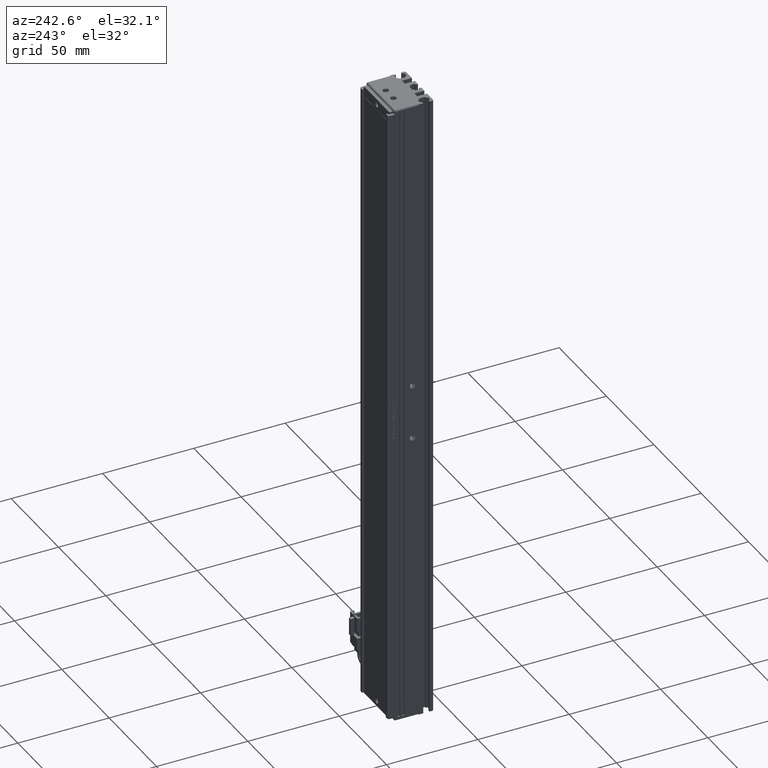
[diagram: clean part render]
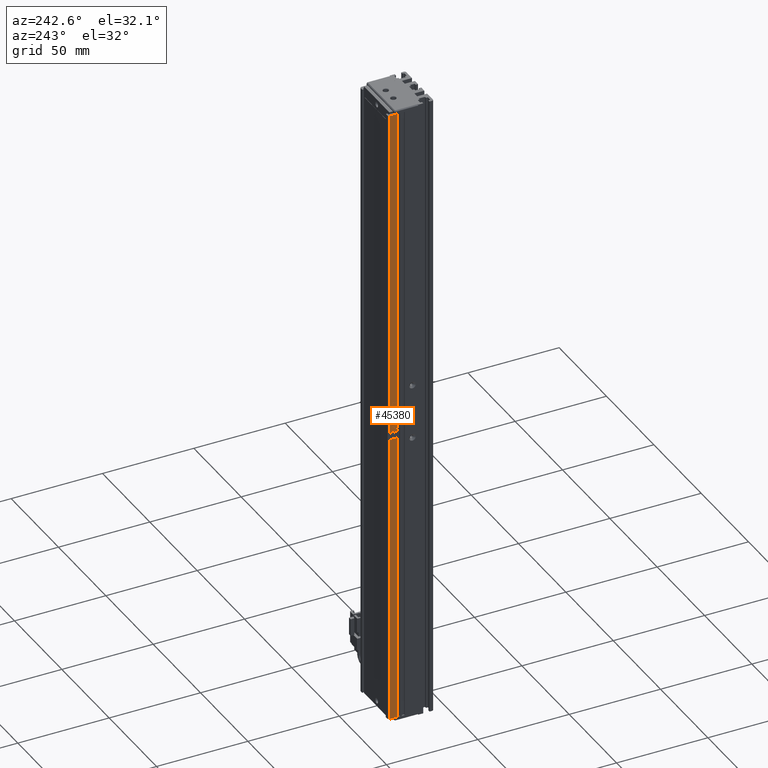
[diagram: same view with one face highlighted and labeled with its STEP entity id]
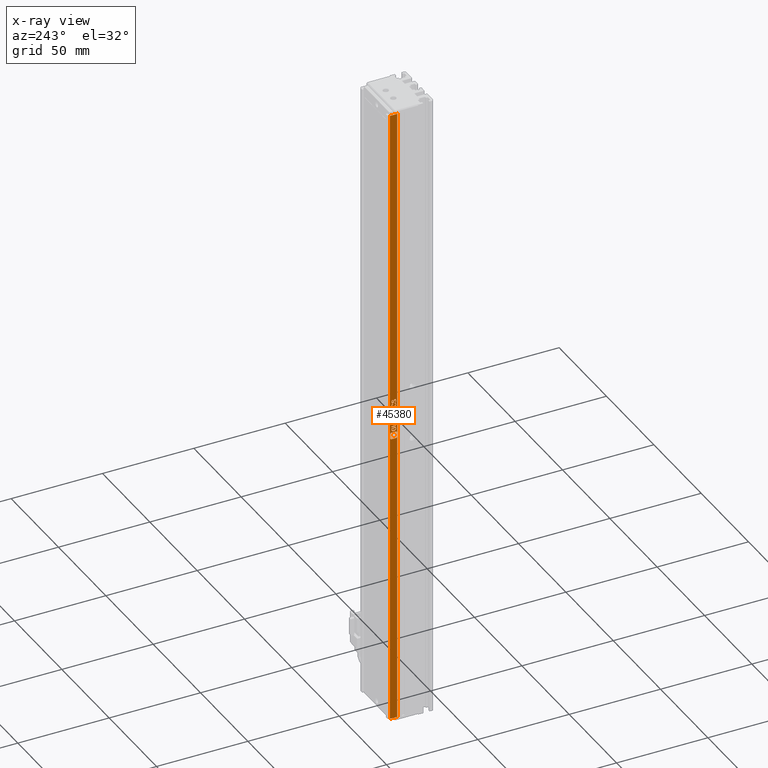
[diagram: x-ray of the same camera — body ghosted, the highlighted face saturated]
A machine part, auxiliary view. The second image highlights one B-rep face of the part: STEP entity #45380.
The next image is the same camera in x-ray: the body ghosted, the highlighted face saturated — about 0% of this face is hidden behind the body in this view.
In plain terms, the highlighted planar face has unit normal (-1, 0, 0).
Its self-contained STEP definition (entity closure, byte-faithful):
#210 = EDGE_LOOP ( 'NONE', ( #59700, #45532, #8097, #22598, #40470, #1730, #28264 ) ) ;
#323 = CARTESIAN_POINT ( 'NONE',  ( 25.92537974683541800, 33.42333488627760100, -115.3983761807793700 ) ) ;
#450 = CARTESIAN_POINT ( 'NONE',  ( 25.92537974683541800, 32.60174213343821500, -117.6690630385403600 ) ) ;
#584 = CARTESIAN_POINT ( 'NONE',  ( 25.92537974683541800, 33.05523050553124200, -113.1673053316716800 ) ) ;
#622 = CARTESIAN_POINT ( 'NONE',  ( 25.92537974683541800, 33.52034678460102400, -110.8567996529265500 ) ) ;
#624 = EDGE_CURVE ( 'NONE', #27095, #11548, #26111, .T. ) ;
#695 = LINE ( 'NONE', #23319, #40625 ) ;
#768 = VERTEX_POINT ( 'NONE', #56754 ) ;
#787 = VERTEX_POINT ( 'NONE', #36292 ) ;
#944 = CARTESIAN_POINT ( 'NONE',  ( 25.92537974683541800, 32.60174213343821500, -115.3476730980320000 ) ) ;
#1074 = EDGE_CURVE ( 'NONE', #56144, #25780, #20077, .T. ) ;
#1302 = CARTESIAN_POINT ( 'NONE',  ( 25.92537974683541800, 32.81104445901963400, -122.3985789931102900 ) ) ;
#1613 = CARTESIAN_POINT ( 'NONE',  ( 25.92537974683541800, 31.64825376134518800, -106.4092604425425600 ) ) ;
#1615 = CARTESIAN_POINT ( 'NONE',  ( 25.92537974683541800, 31.29941655204287400, -120.5544740715310300 ) ) ;
#1665 = CARTESIAN_POINT ( 'NONE',  ( 25.92537974683541800, 33.21802120320565200, -106.7455232873235100 ) ) ;
#1730 = ORIENTED_EDGE ( 'NONE', *, *, #33294, .F. ) ;
#1935 = DIRECTION ( 'NONE',  ( -0.0000000000000000000, -0.0000000000000000000, -1.000000000000000000 ) ) ;
#2080 = CARTESIAN_POINT ( 'NONE',  ( 25.92537974683541800, 31.65988166832194800, -119.8277298854846900 ) ) ;
#2244 = CARTESIAN_POINT ( 'NONE',  ( 25.92537974683541800, 32.61337004041497100, -122.9192658508716000 ) ) ;
#2306 = VERTEX_POINT ( 'NONE', #18006 ) ;
#2331 = CARTESIAN_POINT ( 'NONE',  ( 25.92537974683541800, 33.86918399390334100, -115.0222269109038500 ) ) ;
#2428 = DIRECTION ( 'NONE',  ( -0.0000000000000000000, -0.0000000000000000000, 1.000000000000000000 ) ) ;
#2501 = CARTESIAN_POINT ( 'NONE',  ( 25.92537974683541800, 31.64426511883574400, -108.1702799125264200 ) ) ;
#2588 = CARTESIAN_POINT ( 'NONE',  ( 25.92537974683541800, 33.21021292846253900, -109.2007693662851400 ) ) ;
#2635 = ORIENTED_EDGE ( 'NONE', *, *, #44163, .F. ) ;
#2742 = ORIENTED_EDGE ( 'NONE', *, *, #37081, .F. ) ;
#2754 = LINE ( 'NONE', #6781, #63861 ) ;
#2892 = ORIENTED_EDGE ( 'NONE', *, *, #66946, .F. ) ;
#2908 = DIRECTION ( 'NONE',  ( -0.0000000000000000000, -0.0000000000000000000, 1.000000000000000000 ) ) ;
#3007 = B_SPLINE_CURVE_WITH_KNOTS ( 'NONE', 3,
 ( #67438, #10461, #41660, #46864 ),
 .UNSPECIFIED., .F., .F.,
 ( 4, 4 ),
 ( 6.000000000000000000, 7.000000000000000000 ),
 .UNSPECIFIED. ) ;
#3100 = EDGE_CURVE ( 'NONE', #22012, #26881, #52203, .T. ) ;
#3122 = CARTESIAN_POINT ( 'NONE',  ( 25.92537974683541800, 31.64825376134518800, -106.0838142554143000 ) ) ;
#3170 = CARTESIAN_POINT ( 'NONE',  ( 25.92537974683541800, 33.12499794739170500, -105.4438061429212000 ) ) ;
#3240 = CARTESIAN_POINT ( 'NONE',  ( 25.92537974683541800, 33.86918399390334100, -118.7754719081997600 ) ) ;
#3313 = EDGE_CURVE ( 'NONE', #43095, #30104, #7832, .T. ) ;
#3413 = CARTESIAN_POINT ( 'NONE',  ( 25.92537974683541800, 32.04360259855453600, -121.7043523841326300 ) ) ;
#3445 = B_SPLINE_CURVE_WITH_KNOTS ( 'NONE', 3,
 ( #52673, #5784, #11022, #57916 ),
 .UNSPECIFIED., .F., .F.,
 ( 4, 4 ),
 ( 9.000000000000000000, 10.00000000000000000 ),
 .UNSPECIFIED. ) ;
#3893 = CARTESIAN_POINT ( 'NONE',  ( 25.92537974683541800, 33.89625944009043900, -106.9624648773722100 ) ) ;
#4012 = CARTESIAN_POINT ( 'NONE',  ( 25.92537974683541800, 32.41569562181031500, -106.3549743419476800 ) ) ;
#4065 = EDGE_CURVE ( 'NONE', #25441, #7171, #3445, .T. ) ;
#4086 = DIRECTION ( 'NONE',  ( 0.0000000000000000000, 1.000000000000000000, 0.0000000000000000000 ) ) ;
#4235 = CARTESIAN_POINT ( 'NONE',  ( 25.92537974683541800, 33.86918399390334100, -115.0222269109038500 ) ) ;
#4289 = B_SPLINE_CURVE_WITH_KNOTS ( 'NONE', 3,
 ( #63007, #26515, #11025, #47454 ),
 .UNSPECIFIED., .F., .F.,
 ( 4, 4 ),
 ( 1.000000000000000000, 2.000000000000000000 ),
 .UNSPECIFIED. ) ;
#4342 = EDGE_CURVE ( 'NONE', #20246, #44657, #3007, .T. ) ;
#4452 = CARTESIAN_POINT ( 'NONE',  ( 25.92537974683541800, 33.86918399390334100, -119.2961587659606100 ) ) ;
#4633 = CARTESIAN_POINT ( 'NONE',  ( 25.92537974683541800, 32.06685841250799700, -105.3787033846735300 ) ) ;
#4661 = CARTESIAN_POINT ( 'NONE',  ( 25.92537974683541800, 31.79542790953343000, -117.6329624436242500 ) ) ;
#4704 = CARTESIAN_POINT ( 'NONE',  ( 25.92537974683541800, 32.45057934274056100, -118.7754719081997600 ) ) ;
#4725 = ORIENTED_EDGE ( 'NONE', *, *, #12641, .F. ) ;
#4738 = VERTEX_POINT ( 'NONE', #63719 ) ;
#4765 = EDGE_CURVE ( 'NONE', #42051, #26120, #9333, .T. ) ;
#5010 = CARTESIAN_POINT ( 'NONE',  ( 25.92537974683541800, 32.00091060288117700, -109.1934681223695800 ) ) ;
#5187 = CARTESIAN_POINT ( 'NONE',  ( 25.92537974683541800, 32.61337004041497100, -122.9192658508716000 ) ) ;
#5242 = CARTESIAN_POINT ( 'NONE',  ( 25.92537974683541800, 32.61337004041497100, -109.7394389173939500 ) ) ;
#5247 = CARTESIAN_POINT ( 'NONE',  ( 25.92537974683541800, 34.69594479660387500, -288.0000000000000600 ) ) ;
#5317 = CARTESIAN_POINT ( 'NONE',  ( 25.92537974683541800, 31.36918399390333800, -110.5530543852141800 ) ) ;
#5334 = EDGE_CURVE ( 'NONE', #16511, #9158, #13943, .T. ) ;
#5404 = CARTESIAN_POINT ( 'NONE',  ( 25.92537974683541800, 32.22964911018240700, -107.3313129033319200 ) ) ;
#5424 = CARTESIAN_POINT ( 'NONE',  ( 25.92537974683541800, 33.17150957529867800, -121.7693875382700000 ) ) ;
#5532 = CARTESIAN_POINT ( 'NONE',  ( 25.92537974683541800, 33.90406771483355900, -116.5083680682861900 ) ) ;
#5569 = ORIENTED_EDGE ( 'NONE', *, *, #58284, .F. ) ;
#5784 = CARTESIAN_POINT ( 'NONE',  ( 25.92537974683541800, 33.62100930488225700, -107.7073945690974500 ) ) ;
#5806 = CARTESIAN_POINT ( 'NONE',  ( 25.92537974683541800, 34.16508545272805700, -127.7668061041690800 ) ) ;
#5969 = LINE ( 'NONE', #10055, #59747 ) ;
#6328 = ORIENTED_EDGE ( 'NONE', *, *, #56716, .F. ) ;
#6350 = ORIENTED_EDGE ( 'NONE', *, *, #35983, .F. ) ;
#6568 = LINE ( 'NONE', #23880, #60362 ) ;
#6620 = EDGE_CURVE ( 'NONE', #54466, #24415, #50596, .T. ) ;
#6781 = CARTESIAN_POINT ( 'NONE',  ( 25.92537974683541800, 31.36918399390333800, -110.0431841851061100 ) ) ;
#6825 = EDGE_CURVE ( 'NONE', #25105, #10485, #39551, .T. ) ;
#6988 = CARTESIAN_POINT ( 'NONE',  ( 25.92537974683541800, 33.90406771483355900, -108.6221457859714500 ) ) ;
#7113 = CARTESIAN_POINT ( 'NONE',  ( 25.92537974683541800, 31.64825376134518800, -106.4092604425425600 ) ) ;
#7122 = CARTESIAN_POINT ( 'NONE',  ( 25.92537974683541800, 31.48348707519337700, -124.0383808647334500 ) ) ;
#7136 = EDGE_CURVE ( 'NONE', #32949, #18755, #51028, .T. ) ;
#7171 = VERTEX_POINT ( 'NONE', #6988 ) ;
#7332 = CARTESIAN_POINT ( 'NONE',  ( 25.92537974683541800, 32.04360259855453600, -121.7043523841326300 ) ) ;
#7497 = LINE ( 'NONE', #60200, #61273 ) ;
#7543 = CARTESIAN_POINT ( 'NONE',  ( 25.92537974683541800, 31.87300362613698100, -120.3592334008984300 ) ) ;
#7545 = CARTESIAN_POINT ( 'NONE',  ( 25.92537974683541800, 33.21802120320565200, -106.7455232873235100 ) ) ;
#7832 = B_SPLINE_CURVE_WITH_KNOTS ( 'NONE', 3,
 ( #48682, #12229, #27493, #17451 ),
 .UNSPECIFIED., .F., .F.,
 ( 4, 4 ),
 ( 13.00000000000000000, 14.00000000000000000 ),
 .UNSPECIFIED. ) ;
#8097 = ORIENTED_EDGE ( 'NONE', *, *, #43587, .F. ) ;
#8129 = CARTESIAN_POINT ( 'NONE',  ( 25.92537974683541800, 31.48348707519337700, -124.0383808647334500 ) ) ;
#8143 = DIRECTION ( 'NONE',  ( -0.0000000000000000000, 1.000000000000000000, -0.0000000000000000000 ) ) ;
#8169 = CARTESIAN_POINT ( 'NONE',  ( 25.92537974683541800, 32.46220724971728800, -121.7043523841326300 ) ) ;
#8190 = CARTESIAN_POINT ( 'NONE',  ( 25.92537974683541800, 32.22566046767296700, -113.4349500044679600 ) ) ;
#8302 = DIRECTION ( 'NONE',  ( -0.0000000000000000000, -1.000000000000000000, -0.0000000000000000000 ) ) ;
#8324 = LINE ( 'NONE', #48613, #62106 ) ;
#8440 = CARTESIAN_POINT ( 'NONE',  ( 25.92537974683541800, 33.62881757962534800, -105.5306098205847600 ) ) ;
#8636 = CARTESIAN_POINT ( 'NONE',  ( 25.92537974683541800, 32.46220724971728800, -105.3787033846735300 ) ) ;
#8743 = ORIENTED_EDGE ( 'NONE', *, *, #34306, .F. ) ;
#8785 = LINE ( 'NONE', #28640, #10422 ) ;
#9106 = B_SPLINE_CURVE_WITH_KNOTS ( 'NONE', 3,
 ( #27608, #58766, #12117, #48560 ),
 .UNSPECIFIED., .F., .F.,
 ( 4, 4 ),
 ( 4.000000000000000000, 5.000000000000000000 ),
 .UNSPECIFIED. ) ;
#9135 = CARTESIAN_POINT ( 'NONE',  ( 25.92537974683541800, 35.69594479660387500, -288.0000000000000600 ) ) ;
#9152 = ORIENTED_EDGE ( 'NONE', *, *, #53008, .F. ) ;
#9158 = VERTEX_POINT ( 'NONE', #23717 ) ;
#9226 = DIRECTION ( 'NONE',  ( -0.0000000000000000000, -1.000000000000000000, -0.0000000000000000000 ) ) ;
#9333 = LINE ( 'NONE', #17433, #37002 ) ;
#9342 = ORIENTED_EDGE ( 'NONE', *, *, #20755, .F. ) ;
#9347 = VERTEX_POINT ( 'NONE', #20267 ) ;
#9378 = CARTESIAN_POINT ( 'NONE',  ( 25.92537974683541800, 35.69594479660387500, 58.00000000000000700 ) ) ;
#9406 = VERTEX_POINT ( 'NONE', #10465 ) ;
#9522 = CARTESIAN_POINT ( 'NONE',  ( 25.92537974683541800, 33.54360259855448600, -106.3875595231265700 ) ) ;
#9552 = LINE ( 'NONE', #20014, #21759 ) ;
#9681 = VERTEX_POINT ( 'NONE', #34605 ) ;
#10055 = CARTESIAN_POINT ( 'NONE',  ( 25.92537974683541800, 31.48348707519337700, -127.7668061041690800 ) ) ;
#10080 = ORIENTED_EDGE ( 'NONE', *, *, #11913, .F. ) ;
#10270 = CARTESIAN_POINT ( 'NONE',  ( 25.92537974683541800, 32.59011422646145900, -109.2079354019800900 ) ) ;
#10422 = VECTOR ( 'NONE', #8143, 1000.000000000000000 ) ;
#10445 = VERTEX_POINT ( 'NONE', #1302 ) ;
#10461 = CARTESIAN_POINT ( 'NONE',  ( 25.92537974683541800, 31.32267236599636100, -108.1738629303739600 ) ) ;
#10465 = CARTESIAN_POINT ( 'NONE',  ( 25.92537974683541800, 33.52034678460102400, -112.1476325355657600 ) ) ;
#10485 = VERTEX_POINT ( 'NONE', #22968 ) ;
#10751 = FACE_BOUND ( 'NONE', #39988, .T. ) ;
#11022 = CARTESIAN_POINT ( 'NONE',  ( 25.92537974683541800, 33.89625944009043900, -108.0509586577939600 ) ) ;
#11025 = CARTESIAN_POINT ( 'NONE',  ( 25.92537974683541800, 33.38845116534735500, -108.1738629303739600 ) ) ;
#11028 = CARTESIAN_POINT ( 'NONE',  ( 25.92537974683541800, 33.59775349092874600, -113.1602069000873700 ) ) ;
#11037 = CARTESIAN_POINT ( 'NONE',  ( 25.92537974683541800, 34.53215067387920800, -127.0870172054482900 ) ) ;
#11067 = ORIENTED_EDGE ( 'NONE', *, *, #42819, .F. ) ;
#11534 = VECTOR ( 'NONE', #11608, 1000.000000000000000 ) ;
#11548 = VERTEX_POINT ( 'NONE', #40637 ) ;
#11608 = DIRECTION ( 'NONE',  ( -0.0000000000000000000, -0.0000000000000000000, -1.000000000000000000 ) ) ;
#11718 = DIRECTION ( 'NONE',  ( -0.0000000000000000000, -1.000000000000000000, -0.0000000000000000000 ) ) ;
#11721 = CARTESIAN_POINT ( 'NONE',  ( 25.92537974683541800, 33.05523050553124200, -113.1673053316716800 ) ) ;
#11898 = CARTESIAN_POINT ( 'NONE',  ( 25.92537974683541800, 33.55523050553124200, -122.2792577383781600 ) ) ;
#11913 = EDGE_CURVE ( 'NONE', #60291, #44714, #59245, .T. ) ;
#11997 = DIRECTION ( 'NONE',  ( -0.0000000000000000000, -0.0000000000000000000, 1.000000000000000000 ) ) ;
#12048 = VERTEX_POINT ( 'NONE', #55569 ) ;
#12117 = CARTESIAN_POINT ( 'NONE',  ( 25.92537974683541800, 32.53197469157775100, -107.0204692040354600 ) ) ;
#12129 = CARTESIAN_POINT ( 'NONE',  ( 25.92537974683541800, 33.07848631948472500, -107.5915887281024200 ) ) ;
#12229 = CARTESIAN_POINT ( 'NONE',  ( 25.92537974683541800, 31.45456798525003000, -107.0855043581726000 ) ) ;
#12247 = VECTOR ( 'NONE', #24246, 1000.000000000000000 ) ;
#12264 = EDGE_CURVE ( 'NONE', #46219, #28063, #65899, .T. ) ;
#12273 = DIRECTION ( 'NONE',  ( -0.0000000000000000000, -0.0000000000000000000, 1.000000000000000000 ) ) ;
#12315 = CARTESIAN_POINT ( 'NONE',  ( 25.92537974683541800, 32.22964911018240700, -107.3313129033319200 ) ) ;
#12371 = VERTEX_POINT ( 'NONE', #33218 ) ;
#12373 = FACE_BOUND ( 'NONE', #62413, .T. ) ;
#12405 = VECTOR ( 'NONE', #4086, 1000.000000000000000 ) ;
#12641 = EDGE_CURVE ( 'NONE', #18409, #64549, #66344, .T. ) ;
#12716 = CARTESIAN_POINT ( 'NONE',  ( 25.92537974683541800, 33.55523050553124200, -122.2792577383781600 ) ) ;
#12803 = ORIENTED_EDGE ( 'NONE', *, *, #45396, .F. ) ;
#13090 = CARTESIAN_POINT ( 'NONE',  ( 25.92537974683541800, 33.54360259855448600, -108.5896282089028900 ) ) ;
#13162 = CARTESIAN_POINT ( 'NONE',  ( 25.92537974683541800, 31.65988166832194800, -122.2358558995462800 ) ) ;
#13240 = ORIENTED_EDGE ( 'NONE', *, *, #48242, .F. ) ;
#13304 = VERTEX_POINT ( 'NONE', #5317 ) ;
#13330 = EDGE_CURVE ( 'NONE', #22206, #16511, #38333, .T. ) ;
#13455 = CARTESIAN_POINT ( 'NONE',  ( 25.92537974683541800, 33.43895143576380500, -123.4111533576319200 ) ) ;
#13760 = ORIENTED_EDGE ( 'NONE', *, *, #24142, .F. ) ;
#13813 = CARTESIAN_POINT ( 'NONE',  ( 25.92537974683541800, 31.78778864506611500, -123.4111533576319200 ) ) ;
#13943 = B_SPLINE_CURVE_WITH_KNOTS ( 'NONE', 3,
 ( #31643, #62869, #57566, #450 ),
 .UNSPECIFIED., .F., .F.,
 ( 4, 4 ),
 ( 2.000000000000000000, 3.000000000000000000 ),
 .UNSPECIFIED. ) ;
#13946 = CARTESIAN_POINT ( 'NONE',  ( 25.92537974683541800, 30.80372534025560000, -124.7181086063044400 ) ) ;
#13955 = LINE ( 'NONE', #35467, #15607 ) ;
#13962 = CARTESIAN_POINT ( 'NONE',  ( 25.92537974683541800, 31.65988166832194800, -119.8277298854846900 ) ) ;
#14005 = EDGE_CURVE ( 'NONE', #57929, #52576, #34473, .T. ) ;
#14171 = CARTESIAN_POINT ( 'NONE',  ( 25.92537974683541800, 33.21802120320565200, -107.2770268027372700 ) ) ;
#14212 = CARTESIAN_POINT ( 'NONE',  ( 25.92537974683541800, 32.21802120320565200, -107.6458748286972000 ) ) ;
#14470 = CARTESIAN_POINT ( 'NONE',  ( 25.92537974683541800, 33.90406771483355900, -121.7368699612014200 ) ) ;
#14474 = EDGE_CURVE ( 'NONE', #45155, #42051, #62687, .T. ) ;
#14529 = CARTESIAN_POINT ( 'NONE',  ( 25.92537974683541800, 32.03197469157775100, -105.9102745041974900 ) ) ;
#14642 = CARTESIAN_POINT ( 'NONE',  ( 25.92537974683541800, 33.66752093278923800, -107.2553258833213800 ) ) ;
#14817 = CARTESIAN_POINT ( 'NONE',  ( 25.92537974683541800, 30.80372534025560000, -124.7181086063044400 ) ) ;
#14843 = VERTEX_POINT ( 'NONE', #67493 ) ;
#14870 = ORIENTED_EDGE ( 'NONE', *, *, #25047, .F. ) ;
#15158 = CARTESIAN_POINT ( 'NONE',  ( 25.92537974683541800, 31.36918399390333800, -117.2459965160958600 ) ) ;
#15223 = ORIENTED_EDGE ( 'NONE', *, *, #56114, .F. ) ;
#15232 = B_SPLINE_CURVE_WITH_KNOTS ( 'NONE', 3,
 ( #40419, #45615, #14470, #50874 ),
 .UNSPECIFIED., .F., .F.,
 ( 4, 4 ),
 ( 13.00000000000000000, 14.00000000000000000 ),
 .UNSPECIFIED. ) ;
#15391 = CARTESIAN_POINT ( 'NONE',  ( 25.92537974683541800, 33.54360259855448600, -106.3875595231265700 ) ) ;
#15607 = VECTOR ( 'NONE', #40698, 1000.000000000000000 ) ;
#15610 = CARTESIAN_POINT ( 'NONE',  ( 25.92537974683541800, 34.53215067387920800, -127.0870172054482900 ) ) ;
#15647 = ORIENTED_EDGE ( 'NONE', *, *, #25952, .T. ) ;
#15675 = B_SPLINE_CURVE_WITH_KNOTS ( 'NONE', 3,
 ( #16059, #21288, #57682, #26499 ),
 .UNSPECIFIED., .F., .F.,
 ( 4, 4 ),
 ( 12.00000000000000000, 13.00000000000000000 ),
 .UNSPECIFIED. ) ;
#15881 = VERTEX_POINT ( 'NONE', #49664 ) ;
#15912 = LINE ( 'NONE', #53021, #34677 ) ;
#15953 = LINE ( 'NONE', #32534, #42011 ) ;
#16055 = EDGE_CURVE ( 'NONE', #27095, #63722, #52322, .T. ) ;
#16059 = CARTESIAN_POINT ( 'NONE',  ( 25.92537974683541800, 31.32267236599636100, -106.3333410266419900 ) ) ;
#16287 = CARTESIAN_POINT ( 'NONE',  ( 25.92537974683541800, 33.86918399390334100, -113.4421836442734400 ) ) ;
#16298 = CARTESIAN_POINT ( 'NONE',  ( 25.92537974683541800, 33.71645697767113600, -127.7668061041690800 ) ) ;
#16438 = CARTESIAN_POINT ( 'NONE',  ( 25.92537974683541800, 33.90406771483355900, -106.3983761807795800 ) ) ;
#16449 = ORIENTED_EDGE ( 'NONE', *, *, #3100, .F. ) ;
#16511 = VERTEX_POINT ( 'NONE', #21440 ) ;
#16664 = CARTESIAN_POINT ( 'NONE',  ( 25.92537974683541800, 31.78778864506611500, -107.3313129033319200 ) ) ;
#16816 = VERTEX_POINT ( 'NONE', #65824 ) ;
#16891 = VERTEX_POINT ( 'NONE', #66274 ) ;
#16896 = CARTESIAN_POINT ( 'NONE',  ( 25.92537974683541800, 33.12499794739170500, -105.4438061429212000 ) ) ;
#17043 = CARTESIAN_POINT ( 'NONE',  ( 25.92537974683541800, 31.48348707519337700, -127.7668061041690800 ) ) ;
#17057 = VERTEX_POINT ( 'NONE', #5187 ) ;
#17172 = CARTESIAN_POINT ( 'NONE',  ( 25.92537974683541800, 31.78778864506611500, -107.3313129033319200 ) ) ;
#17263 = LINE ( 'NONE', #13946, #43344 ) ;
#17351 = DIRECTION ( 'NONE',  ( -0.0000000000000000000, -0.0000000000000000000, 1.000000000000000000 ) ) ;
#17384 = ORIENTED_EDGE ( 'NONE', *, *, #63742, .F. ) ;
#17433 = CARTESIAN_POINT ( 'NONE',  ( 25.92537974683541800, 33.52034678460102400, -110.8567996529265500 ) ) ;
#17451 = CARTESIAN_POINT ( 'NONE',  ( 25.92537974683541800, 31.32267236599636100, -106.3333410266419900 ) ) ;
#17559 = ORIENTED_EDGE ( 'NONE', *, *, #29436, .F. ) ;
#17709 = VERTEX_POINT ( 'NONE', #42447 ) ;
#17899 = EDGE_CURVE ( 'NONE', #63077, #12371, #695, .T. ) ;
#18006 = CARTESIAN_POINT ( 'NONE',  ( 25.92537974683541800, 33.55523050553124200, -122.2792577383781600 ) ) ;
#18126 = ORIENTED_EDGE ( 'NONE', *, *, #23621, .F. ) ;
#18202 = ORIENTED_EDGE ( 'NONE', *, *, #29499, .F. ) ;
#18360 = CARTESIAN_POINT ( 'NONE',  ( 25.92537974683541800, 32.01635814209154800, -122.8975649314557000 ) ) ;
#18383 = EDGE_LOOP ( 'NONE', ( #47845, #18126, #66030, #12803, #66850, #18202, #57645, #32357 ) ) ;
#18409 = VERTEX_POINT ( 'NONE', #7545 ) ;
#18623 = EDGE_CURVE ( 'NONE', #35608, #17709, #9552, .T. ) ;
#18712 = B_SPLINE_CURVE_WITH_KNOTS ( 'NONE', 3,
 ( #584, #11028, #16287, #52680 ),
 .UNSPECIFIED., .F., .F.,
 ( 4, 4 ),
 ( 5.000000000000000000, 6.000000000000000000 ),
 .UNSPECIFIED. ) ;
#18755 = VERTEX_POINT ( 'NONE', #25917 ) ;
#18852 = ORIENTED_EDGE ( 'NONE', *, *, #44245, .F. ) ;
#18862 = ORIENTED_EDGE ( 'NONE', *, *, #6620, .F. ) ;
#18881 = CARTESIAN_POINT ( 'NONE',  ( 25.92537974683541800, 33.90406771483355900, -106.3983761807795800 ) ) ;
#19044 = VECTOR ( 'NONE', #56233, 1000.000000000000000 ) ;
#19064 = VECTOR ( 'NONE', #62662, 1000.000000000000000 ) ;
#19066 = CARTESIAN_POINT ( 'NONE',  ( 25.92537974683541800, 32.85755608692657900, -106.3333410266419900 ) ) ;
#19174 = DIRECTION ( 'NONE',  ( -0.0000000000000000000, -0.0000000000000000000, 1.000000000000000000 ) ) ;
#19221 = ORIENTED_EDGE ( 'NONE', *, *, #61546, .F. ) ;
#19241 = CARTESIAN_POINT ( 'NONE',  ( 25.92537974683541800, 30.80372534025560000, -127.0870172054482900 ) ) ;
#19430 = ORIENTED_EDGE ( 'NONE', *, *, #34254, .F. ) ;
#19794 = DIRECTION ( 'NONE',  ( -0.0000000000000000000, 1.000000000000000000, -0.0000000000000000000 ) ) ;
#19841 = DIRECTION ( 'NONE',  ( -0.0000000000000000000, -1.000000000000000000, -0.0000000000000000000 ) ) ;
#19854 = CARTESIAN_POINT ( 'NONE',  ( 25.92537974683541800, 33.21802120320565200, -107.2770268027372700 ) ) ;
#19936 = CARTESIAN_POINT ( 'NONE',  ( 25.92537974683541800, 31.36918399390333800, -111.6269456778050100 ) ) ;
#20001 = B_SPLINE_CURVE_WITH_KNOTS ( 'NONE', 3,
 ( #13162, #44336, #18360, #54802 ),
 .UNSPECIFIED., .F., .F.,
 ( 4, 4 ),
 ( 3.000000000000000000, 4.000000000000000000 ),
 .UNSPECIFIED. ) ;
#20014 = CARTESIAN_POINT ( 'NONE',  ( 25.92537974683541800, 32.81104445901963400, -121.2161831034404600 ) ) ;
#20071 = VERTEX_POINT ( 'NONE', #19241 ) ;
#20077 = B_SPLINE_CURVE_WITH_KNOTS ( 'NONE', 3,
 ( #44619, #60124, #13455, #49874 ),
 .UNSPECIFIED., .F., .F.,
 ( 4, 4 ),
 ( 12.00000000000000000, 13.00000000000000000 ),
 .UNSPECIFIED. ) ;
#20170 = CARTESIAN_POINT ( 'NONE',  ( 25.92537974683541800, 33.86918399390334100, -114.0134383765609100 ) ) ;
#20197 = EDGE_CURVE ( 'NONE', #9158, #14843, #61095, .T. ) ;
#20246 = VERTEX_POINT ( 'NONE', #21056 ) ;
#20267 = CARTESIAN_POINT ( 'NONE',  ( 25.92537974683541800, 33.07848631948472500, -108.1014589282104900 ) ) ;
#20497 = DIRECTION ( 'NONE',  ( -0.0000000000000000000, -1.000000000000000000, -0.0000000000000000000 ) ) ;
#20631 = ORIENTED_EDGE ( 'NONE', *, *, #58252, .F. ) ;
#20648 = CARTESIAN_POINT ( 'NONE',  ( 25.92537974683541800, 31.36154472943608000, -109.3236736388649200 ) ) ;
#20755 = EDGE_CURVE ( 'NONE', #39131, #63576, #64553, .T. ) ;
#20756 = CARTESIAN_POINT ( 'NONE',  ( 25.92537974683541800, 33.90406771483355900, -108.6221457859714500 ) ) ;
#20769 = CARTESIAN_POINT ( 'NONE',  ( 25.92537974683541800, 33.07848631948472500, -107.5915887281024200 ) ) ;
#20900 = ORIENTED_EDGE ( 'NONE', *, *, #20197, .F. ) ;
#21056 = CARTESIAN_POINT ( 'NONE',  ( 25.92537974683541800, 31.32267236599636100, -108.6004448665555600 ) ) ;
#21117 = VECTOR ( 'NONE', #54012, 1000.000000000000000 ) ;
#21288 = CARTESIAN_POINT ( 'NONE',  ( 25.92537974683541800, 31.32267236599636100, -105.6897498963012500 ) ) ;
#21304 = DIRECTION ( 'NONE',  ( -0.0000000000000000000, 1.000000000000000000, -0.0000000000000000000 ) ) ;
#21440 = CARTESIAN_POINT ( 'NONE',  ( 25.92537974683541800, 33.90406771483355900, -116.5083680682861900 ) ) ;
#21451 = CARTESIAN_POINT ( 'NONE',  ( 25.92537974683541800, 33.53579432381139500, -106.1706179330780800 ) ) ;
#21619 = ORIENTED_EDGE ( 'NONE', *, *, #624, .T. ) ;
#21759 = VECTOR ( 'NONE', #19794, 1000.000000000000000 ) ;
#21865 = DIRECTION ( 'NONE',  ( -0.0000000000000000000, 1.000000000000000000, -0.0000000000000000000 ) ) ;
#21901 = CARTESIAN_POINT ( 'NONE',  ( 25.92537974683541800, 32.29941655204287100, -119.2961587659606100 ) ) ;
#22004 = CARTESIAN_POINT ( 'NONE',  ( 25.92537974683541800, 31.65988166832194800, -122.2358558995462800 ) ) ;
#22012 = VERTEX_POINT ( 'NONE', #5424 ) ;
#22088 = LINE ( 'NONE', #8169, #48116 ) ;
#22206 = VERTEX_POINT ( 'NONE', #63725 ) ;
#22340 = CARTESIAN_POINT ( 'NONE',  ( 25.92537974683541800, 31.36918399390333800, -114.5124243149061000 ) ) ;
#22408 = CARTESIAN_POINT ( 'NONE',  ( 25.92537974683541800, 33.17150957529867800, -121.7693875382700000 ) ) ;
#22491 = CARTESIAN_POINT ( 'NONE',  ( 25.92537974683541800, 31.77998037032302700, -121.7839900261011400 ) ) ;
#22598 = ORIENTED_EDGE ( 'NONE', *, *, #62083, .F. ) ;
#22641 = VERTEX_POINT ( 'NONE', #11721 ) ;
#22664 = DIRECTION ( 'NONE',  ( -1.000000000000000000, 0.0000000000000000000, 0.0000000000000000000 ) ) ;
#22968 = CARTESIAN_POINT ( 'NONE',  ( 25.92537974683541800, 31.36918399390333800, -115.0222269109038500 ) ) ;
#23068 = CARTESIAN_POINT ( 'NONE',  ( 25.92537974683541800, 33.90406771483355900, -122.2792577383781600 ) ) ;
#23206 = CARTESIAN_POINT ( 'NONE',  ( 25.92537974683541800, 33.52034678460102400, -112.1476325355657600 ) ) ;
#23319 = CARTESIAN_POINT ( 'NONE',  ( 25.92537974683541800, 33.86918399390334100, -120.8799202586595100 ) ) ;
#23344 = CARTESIAN_POINT ( 'NONE',  ( 25.92537974683541800, 33.86918399390334100, -110.0431841851061300 ) ) ;
#23534 = B_SPLINE_CURVE_WITH_KNOTS ( 'NONE', 3,
 ( #11898, #43109, #53564, #22408 ),
 .UNSPECIFIED., .F., .F.,
 ( 4, 4 ),
 ( 1.000000000000000000, 2.000000000000000000 ),
 .UNSPECIFIED. ) ;
#23545 = LINE ( 'NONE', #51168, #63481 ) ;
#23547 = EDGE_CURVE ( 'NONE', #11548, #42533, #46748, .T. ) ;
#23621 = EDGE_CURVE ( 'NONE', #57638, #27517, #5969, .T. ) ;
#23713 = ORIENTED_EDGE ( 'NONE', *, *, #66059, .F. ) ;
#23717 = CARTESIAN_POINT ( 'NONE',  ( 25.92537974683541800, 32.60174213343821500, -117.6690630385403600 ) ) ;
#23872 = DIRECTION ( 'NONE',  ( -0.0000000000000000000, -0.0000000000000000000, 1.000000000000000000 ) ) ;
#23880 = CARTESIAN_POINT ( 'NONE',  ( 25.92537974683541800, 31.36918399390333800, -110.5530543852141800 ) ) ;
#23979 = B_SPLINE_CURVE_WITH_KNOTS ( 'NONE', 3,
 ( #58774, #27618, #32866, #1665 ),
 .UNSPECIFIED., .F., .F.,
 ( 4, 4 ),
 ( 10.00000000000000000, 11.00000000000000000 ),
 .UNSPECIFIED. ) ;
#24142 = EDGE_CURVE ( 'NONE', #15881, #63077, #13955, .T. ) ;
#24190 = VECTOR ( 'NONE', #17351, 1000.000000000000000 ) ;
#24246 = DIRECTION ( 'NONE',  ( 0.0000000000000000000, 0.0000000000000000000, 1.000000000000000000 ) ) ;
#24415 = VERTEX_POINT ( 'NONE', #22004 ) ;
#24540 = CARTESIAN_POINT ( 'NONE',  ( 25.92537974683541800, 33.52034678460102400, -112.9177785604439900 ) ) ;
#24601 = CARTESIAN_POINT ( 'NONE',  ( 25.92537974683541800, 31.36918399390333800, -112.1476325355657600 ) ) ;
#24602 = DIRECTION ( 'NONE',  ( -0.0000000000000000000, 1.000000000000000000, -0.0000000000000000000 ) ) ;
#24622 = FACE_BOUND ( 'NONE', #45392, .T. ) ;
#24689 = CARTESIAN_POINT ( 'NONE',  ( 25.92537974683541800, 32.46220724971728800, -122.3985789931102900 ) ) ;
#24714 = CARTESIAN_POINT ( 'NONE',  ( 25.92537974683541800, 31.32267236599636100, -122.2466725571991800 ) ) ;
#24797 = VERTEX_POINT ( 'NONE', #66422 ) ;
#25041 = EDGE_CURVE ( 'NONE', #2306, #22012, #23534, .T. ) ;
#25042 = ORIENTED_EDGE ( 'NONE', *, *, #4765, .F. ) ;
#25047 = EDGE_CURVE ( 'NONE', #25666, #18409, #23979, .T. ) ;
#25105 = VERTEX_POINT ( 'NONE', #2331 ) ;
#25231 = B_SPLINE_CURVE_WITH_KNOTS ( 'NONE', 3,
 ( #4012, #35237, #45667, #14529 ),
 .UNSPECIFIED., .F., .F.,
 ( 4, 4 ),
 ( 3.000000000000000000, 4.000000000000000000 ),
 .UNSPECIFIED. ) ;
#25276 = ORIENTED_EDGE ( 'NONE', *, *, #46041, .F. ) ;
#25310 = B_SPLINE_CURVE_WITH_KNOTS ( 'NONE', 3,
 ( #28926, #8190, #65586, #34390 ),
 .UNSPECIFIED., .F., .F.,
 ( 4, 4 ),
 ( 6.000000000000000000, 7.000000000000000000 ),
 .UNSPECIFIED. ) ;
#25441 = VERTEX_POINT ( 'NONE', #20769 ) ;
#25536 = CARTESIAN_POINT ( 'NONE',  ( 25.92537974683541800, 30.69594479660386800, -288.0000000000000600 ) ) ;
#25666 = VERTEX_POINT ( 'NONE', #33252 ) ;
#25750 = ORIENTED_EDGE ( 'NONE', *, *, #67164, .F. ) ;
#25780 = VERTEX_POINT ( 'NONE', #44369 ) ;
#25814 = EDGE_CURVE ( 'NONE', #51229, #22641, #25310, .T. ) ;
#25886 = ORIENTED_EDGE ( 'NONE', *, *, #39685, .F. ) ;
#25917 = CARTESIAN_POINT ( 'NONE',  ( 25.92537974683541800, 34.53215067387920800, -124.7181086063044400 ) ) ;
#25952 = EDGE_CURVE ( 'NONE', #42533, #63722, #23545, .T. ) ;
#25956 = CARTESIAN_POINT ( 'NONE',  ( 25.92537974683541800, 32.45057934274056100, -118.7754719081997600 ) ) ;
#26111 = LINE ( 'NONE', #50174, #12247 ) ;
#26120 = VERTEX_POINT ( 'NONE', #622 ) ;
#26239 = FACE_BOUND ( 'NONE', #29455, .T. ) ;
#26241 = ORIENTED_EDGE ( 'NONE', *, *, #52821, .F. ) ;
#26312 = EDGE_CURVE ( 'NONE', #36055, #59805, #8785, .T. ) ;
#26412 = ORIENTED_EDGE ( 'NONE', *, *, #1074, .F. ) ;
#26414 = VECTOR ( 'NONE', #12273, 1000.000000000000000 ) ;
#26499 = CARTESIAN_POINT ( 'NONE',  ( 25.92537974683541800, 32.06685841250799700, -105.3787033846735300 ) ) ;
#26515 = CARTESIAN_POINT ( 'NONE',  ( 25.92537974683541800, 33.54360259855448600, -108.3365184198276700 ) ) ;
#26881 = VERTEX_POINT ( 'NONE', #54497 ) ;
#26909 = CARTESIAN_POINT ( 'NONE',  ( 25.92537974683541800, 31.32267236599636100, -116.5083680682861900 ) ) ;
#27095 = VERTEX_POINT ( 'NONE', #25536 ) ;
#27212 = VERTEX_POINT ( 'NONE', #13962 ) ;
#27493 = CARTESIAN_POINT ( 'NONE',  ( 25.92537974683541800, 31.29941655204287400, -106.7528245312391800 ) ) ;
#27517 = VERTEX_POINT ( 'NONE', #32354 ) ;
#27522 = CARTESIAN_POINT ( 'NONE',  ( 25.92537974683541800, 30.80372534025560000, -127.0870172054482900 ) ) ;
#27608 = CARTESIAN_POINT ( 'NONE',  ( 25.92537974683541800, 33.21802120320565200, -107.2770268027372700 ) ) ;
#27618 = CARTESIAN_POINT ( 'NONE',  ( 25.92537974683541800, 32.90406771483355900, -106.6226190147436200 ) ) ;
#27711 = CARTESIAN_POINT ( 'NONE',  ( 25.92537974683541800, 31.65988166832194800, -122.2358558995462800 ) ) ;
#27717 = DIRECTION ( 'NONE',  ( -0.0000000000000000000, -0.0000000000000000000, 1.000000000000000000 ) ) ;
#27780 = ORIENTED_EDGE ( 'NONE', *, *, #5334, .F. ) ;
#28063 = VERTEX_POINT ( 'NONE', #62845 ) ;
#28103 = LINE ( 'NONE', #24601, #55799 ) ;
#28264 = ORIENTED_EDGE ( 'NONE', *, *, #43615, .F. ) ;
#28501 = VERTEX_POINT ( 'NONE', #20170 ) ;
#28517 = ORIENTED_EDGE ( 'NONE', *, *, #46757, .F. ) ;
#28640 = CARTESIAN_POINT ( 'NONE',  ( 25.92537974683541800, 33.86918399390334100, -110.0431841851061100 ) ) ;
#28793 = EDGE_LOOP ( 'NONE', ( #49162, #21619, #63802, #15647 ) ) ;
#28926 = CARTESIAN_POINT ( 'NONE',  ( 25.92537974683541800, 32.24127701715914200, -114.0134383765609100 ) ) ;
#28988 = EDGE_CURVE ( 'NONE', #20071, #57929, #17263, .T. ) ;
#29101 = CARTESIAN_POINT ( 'NONE',  ( 25.92537974683541800, 31.36918399390333800, -115.0222269109038500 ) ) ;
#29207 = VERTEX_POINT ( 'NONE', #57172 ) ;
#29214 = VERTEX_POINT ( 'NONE', #46917 ) ;
#29436 = EDGE_CURVE ( 'NONE', #59946, #45155, #38639, .T. ) ;
#29455 = EDGE_LOOP ( 'NONE', ( #33572, #53587, #10080, #35792, #6328, #60327, #9342, #8743, #25886, #2635, #4725, #14870, #49439, #49200 ) ) ;
#29499 = EDGE_CURVE ( 'NONE', #52576, #32949, #34564, .T. ) ;
#29541 = CARTESIAN_POINT ( 'NONE',  ( 25.92537974683541800, 31.35373645469296400, -123.0133031683403000 ) ) ;
#29912 = CARTESIAN_POINT ( 'NONE',  ( 25.92537974683541800, 31.36918399390333800, -112.1476325355657600 ) ) ;
#29922 = DIRECTION ( 'NONE',  ( -0.0000000000000000000, 1.000000000000000000, -0.0000000000000000000 ) ) ;
#29956 = CARTESIAN_POINT ( 'NONE',  ( 25.92537974683541800, 31.32267236599636100, -121.7043523841326300 ) ) ;
#30104 = VERTEX_POINT ( 'NONE', #41778 ) ;
#30175 = VERTEX_POINT ( 'NONE', #16896 ) ;
#30182 = VECTOR ( 'NONE', #2428, 1000.000000000000000 ) ;
#30237 = CARTESIAN_POINT ( 'NONE',  ( 25.92537974683541800, 33.54360259855448600, -106.6335032765068300 ) ) ;
#30258 = CARTESIAN_POINT ( 'NONE',  ( 25.92537974683541800, 33.86918399390334100, -110.8567996529265700 ) ) ;
#30321 = CARTESIAN_POINT ( 'NONE',  ( 25.92537974683541800, 31.36918399390333800, -110.0431841851061100 ) ) ;
#30490 = B_SPLINE_CURVE_WITH_KNOTS ( 'NONE', 3,
 ( #53980, #59205, #33298, #2080 ),
 .UNSPECIFIED., .F., .F.,
 ( 4, 4 ),
 ( 4.000000000000000000, 5.000000000000000000 ),
 .UNSPECIFIED. ) ;
#30946 = B_SPLINE_CURVE_WITH_KNOTS ( 'NONE', 3,
 ( #41225, #41441, #57136, #25956 ),
 .UNSPECIFIED., .F., .F.,
 ( 4, 4 ),
 ( 8.000000000000000000, 9.000000000000000000 ),
 .UNSPECIFIED. ) ;
#31643 = CARTESIAN_POINT ( 'NONE',  ( 25.92537974683541800, 33.90406771483355900, -116.5083680682861900 ) ) ;
#32057 = ORIENTED_EDGE ( 'NONE', *, *, #4065, .F. ) ;
#32131 = CARTESIAN_POINT ( 'NONE',  ( 25.92537974683541800, 33.12499794739170500, -105.9427920812660600 ) ) ;
#32149 = CARTESIAN_POINT ( 'NONE',  ( 25.92537974683541800, 31.79542790953343000, -115.3839765052791500 ) ) ;
#32311 = CARTESIAN_POINT ( 'NONE',  ( 25.92537974683541800, 33.12499794739170500, -105.4438061429212000 ) ) ;
#32346 = CARTESIAN_POINT ( 'NONE',  ( 25.92537974683541800, 32.81104445901963400, -122.3985789931102900 ) ) ;
#32354 = CARTESIAN_POINT ( 'NONE',  ( 25.92537974683541800, 31.48348707519337700, -127.7668061041690800 ) ) ;
#32357 = ORIENTED_EDGE ( 'NONE', *, *, #28988, .F. ) ;
#32534 = CARTESIAN_POINT ( 'NONE',  ( 25.92537974683541800, 33.86918399390334100, -118.7754719081997600 ) ) ;
#32634 = DIRECTION ( 'NONE',  ( -0.0000000000000000000, -0.0000000000000000000, 1.000000000000000000 ) ) ;
#32716 = CARTESIAN_POINT ( 'NONE',  ( 25.92537974683541800, 34.53215067387920800, -124.7181086063044400 ) ) ;
#32726 = CARTESIAN_POINT ( 'NONE',  ( 25.92537974683541800, 31.65207339357886000, -121.9611127951655800 ) ) ;
#32866 = CARTESIAN_POINT ( 'NONE',  ( 25.92537974683541800, 33.02416641683463900, -106.7601257751547600 ) ) ;
#32949 = VERTEX_POINT ( 'NONE', #38204 ) ;
#32987 = CARTESIAN_POINT ( 'NONE',  ( 25.92537974683541800, 33.52034678460102400, -111.6269456778050100 ) ) ;
#33064 = CARTESIAN_POINT ( 'NONE',  ( 25.92537974683541800, 31.65589302581247500, -106.7563399449764000 ) ) ;
#33127 = CARTESIAN_POINT ( 'NONE',  ( 25.92537974683541800, 34.53215067387920800, -127.0870172054482900 ) ) ;
#33218 = CARTESIAN_POINT ( 'NONE',  ( 25.92537974683541800, 33.86918399390334100, -120.8799202586595100 ) ) ;
#33221 = ORIENTED_EDGE ( 'NONE', *, *, #26312, .F. ) ;
#33252 = CARTESIAN_POINT ( 'NONE',  ( 25.92537974683541800, 32.85755608692657900, -106.3333410266419900 ) ) ;
#33259 = CARTESIAN_POINT ( 'NONE',  ( 25.92537974683541800, 31.36918399390333800, -111.6269456778050100 ) ) ;
#33294 = EDGE_CURVE ( 'NONE', #28501, #25105, #38271, .T. ) ;
#33298 = CARTESIAN_POINT ( 'NONE',  ( 25.92537974683541800, 31.64426511883574400, -119.4588818595246400 ) ) ;
#33465 = CARTESIAN_POINT ( 'NONE',  ( 25.92537974683541800, 33.20240465371947600, -122.8975649314557000 ) ) ;
#33502 = CARTESIAN_POINT ( 'NONE',  ( 25.92537974683541800, 31.65988166832194800, -119.8277298854846900 ) ) ;
#33572 = ORIENTED_EDGE ( 'NONE', *, *, #3313, .F. ) ;
#33591 = CARTESIAN_POINT ( 'NONE',  ( 25.92537974683541800, 32.59011422646145900, -109.2079354019800900 ) ) ;
#33726 = CARTESIAN_POINT ( 'NONE',  ( 25.92537974683541800, 31.83031163046364800, -107.8918185820773600 ) ) ;
#34005 = B_SPLINE_CURVE_WITH_KNOTS ( 'NONE', 3,
 ( #59651, #33726, #2501, #38940 ),
 .UNSPECIFIED., .F., .F.,
 ( 4, 4 ),
 ( 4.000000000000000000, 5.000000000000000000 ),
 .UNSPECIFIED. ) ;
#34090 = CARTESIAN_POINT ( 'NONE',  ( 25.92537974683541800, 31.03482462394124000, -124.0383808647334500 ) ) ;
#34254 = EDGE_CURVE ( 'NONE', #29214, #46219, #34005, .T. ) ;
#34306 = EDGE_CURVE ( 'NONE', #30175, #39131, #34907, .T. ) ;
#34375 = VECTOR ( 'NONE', #29922, 1000.000000000000000 ) ;
#34390 = CARTESIAN_POINT ( 'NONE',  ( 25.92537974683541800, 33.05523050553124200, -113.1673053316716800 ) ) ;
#34473 = B_SPLINE_CURVE_WITH_KNOTS ( 'NONE', 3,
 ( #39295, #65082, #34090, #8129 ),
 .UNSPECIFIED., .F., .F.,
 ( 4, 4 ),
 ( 5.000000000000000000, 6.000000000000000000 ),
 .UNSPECIFIED. ) ;
#34504 = ORIENTED_EDGE ( 'NONE', *, *, #61630, .F. ) ;
#34564 = LINE ( 'NONE', #61035, #48366 ) ;
#34605 = CARTESIAN_POINT ( 'NONE',  ( 25.92537974683541800, 32.61337004041497100, -109.7394389173939500 ) ) ;
#34677 = VECTOR ( 'NONE', #21865, 1000.000000000000000 ) ;
#34813 = EDGE_CURVE ( 'NONE', #37404, #60291, #35359, .T. ) ;
#34907 = B_SPLINE_CURVE_WITH_KNOTS ( 'NONE', 3,
 ( #3170, #8440, #50085, #18881 ),
 .UNSPECIFIED., .F., .F.,
 ( 4, 4 ),
 ( 6.000000000000000000, 7.000000000000000000 ),
 .UNSPECIFIED. ) ;
#35090 = EDGE_CURVE ( 'NONE', #46911, #57638, #35809, .T. ) ;
#35127 = VECTOR ( 'NONE', #9226, 1000.000000000000000 ) ;
#35190 = CARTESIAN_POINT ( 'NONE',  ( 25.92537974683541800, 31.88081190088009400, -121.2161831034404600 ) ) ;
#35237 = CARTESIAN_POINT ( 'NONE',  ( 25.92537974683541800, 32.36137571916022200, -106.0585303181508700 ) ) ;
#35359 = B_SPLINE_CURVE_WITH_KNOTS ( 'NONE', 3,
 ( #59831, #55031, #3122, #39562 ),
 .UNSPECIFIED., .F., .F.,
 ( 4, 4 ),
 ( 2.000000000000000000, 3.000000000000000000 ),
 .UNSPECIFIED. ) ;
#35467 = CARTESIAN_POINT ( 'NONE',  ( 25.92537974683541800, 33.86918399390334100, -120.3592334008984300 ) ) ;
#35608 = VERTEX_POINT ( 'NONE', #41984 ) ;
#35792 = ORIENTED_EDGE ( 'NONE', *, *, #34813, .F. ) ;
#35809 = B_SPLINE_CURVE_WITH_KNOTS ( 'NONE', 3,
 ( #11037, #42260, #5806, #16298 ),
 .UNSPECIFIED., .F., .F.,
 ( 4, 4 ),
 ( 1.000000000000000000, 2.000000000000000000 ),
 .UNSPECIFIED. ) ;
#35983 = EDGE_CURVE ( 'NONE', #4738, #54466, #37112, .T. ) ;
#36055 = VERTEX_POINT ( 'NONE', #30321 ) ;
#36179 = B_SPLINE_CURVE_WITH_KNOTS ( 'NONE', 3,
 ( #2244, #33465, #43905, #12716 ),
 .UNSPECIFIED., .F., .F.,
 ( 4, 4 ),
 ( 2.000000000000000000, 3.000000000000000000 ),
 .UNSPECIFIED. ) ;
#36224 = CARTESIAN_POINT ( 'NONE',  ( 25.92537974683541800, 31.69077674674269200, -108.9513101991677600 ) ) ;
#36292 = CARTESIAN_POINT ( 'NONE',  ( 25.92537974683541800, 33.86918399390334100, -112.9177785604439900 ) ) ;
#36368 = VECTOR ( 'NONE', #19841, 1000.000000000000000 ) ;
#36455 = CARTESIAN_POINT ( 'NONE',  ( 25.92537974683541800, 33.42732352878707000, -109.7033383224776300 ) ) ;
#36534 = EDGE_CURVE ( 'NONE', #59023, #25666, #38768, .T. ) ;
#36621 = B_SPLINE_CURVE_WITH_KNOTS ( 'NONE', 3,
 ( #48287, #48046, #1615, #38031 ),
 .UNSPECIFIED., .F., .F.,
 ( 4, 4 ),
 ( 9.000000000000000000, 10.00000000000000000 ),
 .UNSPECIFIED. ) ;
#36684 = VECTOR ( 'NONE', #43005, 1000.000000000000000 ) ;
#36763 = CARTESIAN_POINT ( 'NONE',  ( 25.92537974683541800, 33.85755608692660700, -115.7852745041975600 ) ) ;
#37002 = VECTOR ( 'NONE', #27717, 1000.000000000000000 ) ;
#37081 = EDGE_CURVE ( 'NONE', #16816, #35608, #39224, .T. ) ;
#37112 = LINE ( 'NONE', #3413, #63226 ) ;
#37189 = ORIENTED_EDGE ( 'NONE', *, *, #53820, .F. ) ;
#37404 = VERTEX_POINT ( 'NONE', #37849 ) ;
#37747 = DIRECTION ( 'NONE',  ( -0.0000000000000000000, 1.000000000000000000, -0.0000000000000000000 ) ) ;
#37849 = CARTESIAN_POINT ( 'NONE',  ( 25.92537974683541800, 32.03197469157775100, -105.9102745041974900 ) ) ;
#37903 = ORIENTED_EDGE ( 'NONE', *, *, #13330, .F. ) ;
#37983 = LINE ( 'NONE', #17172, #65731 ) ;
#37987 = EDGE_CURVE ( 'NONE', #42371, #47257, #15953, .T. ) ;
#38031 = CARTESIAN_POINT ( 'NONE',  ( 25.92537974683541800, 31.32267236599636100, -119.8385465431374700 ) ) ;
#38204 = CARTESIAN_POINT ( 'NONE',  ( 25.92537974683541800, 33.85239573418066100, -124.0383808647334500 ) ) ;
#38220 = EDGE_CURVE ( 'NONE', #60199, #51229, #40315, .T. ) ;
#38271 = LINE ( 'NONE', #4235, #64373 ) ;
#38288 = VERTEX_POINT ( 'NONE', #24540 ) ;
#38299 = LINE ( 'NONE', #32311, #36684 ) ;
#38333 = B_SPLINE_CURVE_WITH_KNOTS ( 'NONE', 3,
 ( #62744, #323, #36763, #5532 ),
 .UNSPECIFIED., .F., .F.,
 ( 4, 4 ),
 ( 3.000000000000000000, 4.000000000000000000 ),
 .UNSPECIFIED. ) ;
#38350 = LINE ( 'NONE', #44661, #64462 ) ;
#38374 = ORIENTED_EDGE ( 'NONE', *, *, #59548, .F. ) ;
#38454 = FACE_BOUND ( 'NONE', #210, .T. ) ;
#38639 = LINE ( 'NONE', #33259, #26414 ) ;
#38716 = CARTESIAN_POINT ( 'NONE',  ( 25.92537974683541800, 31.65988166832194800, -120.1821106318340900 ) ) ;
#38768 = B_SPLINE_CURVE_WITH_KNOTS ( 'NONE', 3,
 ( #39571, #8636, #50256, #19066 ),
 .UNSPECIFIED., .F., .F.,
 ( 4, 4 ),
 ( 11.00000000000000000, 12.00000000000000000 ),
 .UNSPECIFIED. ) ;
#38940 = CARTESIAN_POINT ( 'NONE',  ( 25.92537974683541800, 31.65988166832194800, -108.4811236118232200 ) ) ;
#39131 = VERTEX_POINT ( 'NONE', #16438 ) ;
#39145 = EDGE_CURVE ( 'NONE', #14843, #22206, #40125, .T. ) ;
#39224 = B_SPLINE_CURVE_WITH_KNOTS ( 'NONE', 3,
 ( #24714, #29956, #66410, #35190 ),
 .UNSPECIFIED., .F., .F.,
 ( 4, 4 ),
 ( 10.00000000000000000, 11.00000000000000000 ),
 .UNSPECIFIED. ) ;
#39283 = CARTESIAN_POINT ( 'NONE',  ( 25.92537974683541800, 33.86918399390334100, -119.2961587659606100 ) ) ;
#39295 = CARTESIAN_POINT ( 'NONE',  ( 25.92537974683541800, 30.80372534025560000, -124.7181086063044400 ) ) ;
#39551 = LINE ( 'NONE', #29101, #41187 ) ;
#39562 = CARTESIAN_POINT ( 'NONE',  ( 25.92537974683541800, 31.64825376134518800, -106.4092604425425600 ) ) ;
#39571 = CARTESIAN_POINT ( 'NONE',  ( 25.92537974683541800, 32.06685841250799700, -105.3787033846735300 ) ) ;
#39685 = EDGE_CURVE ( 'NONE', #16891, #30175, #38299, .T. ) ;
#39748 = LINE ( 'NONE', #63009, #64225 ) ;
#39869 = DIRECTION ( 'NONE',  ( -0.0000000000000000000, -1.000000000000000000, -0.0000000000000000000 ) ) ;
#39988 = EDGE_LOOP ( 'NONE', ( #18852, #25750, #52307, #13760, #25276, #15223, #19221, #23713, #62458, #61971 ) ) ;
#40091 = FACE_BOUND ( 'NONE', #56661, .T. ) ;
#40125 = B_SPLINE_CURVE_WITH_KNOTS ( 'NONE', 3,
 ( #26909, #58077, #32149, #944 ),
 .UNSPECIFIED., .F., .F.,
 ( 4, 4 ),
 ( 0.0000000000000000000, 1.000000000000000000 ),
 .UNSPECIFIED. ) ;
#40315 = LINE ( 'NONE', #60289, #54143 ) ;
#40419 = CARTESIAN_POINT ( 'NONE',  ( 25.92537974683541800, 33.17150957529867800, -121.2270673652035500 ) ) ;
#40470 = ORIENTED_EDGE ( 'NONE', *, *, #6825, .F. ) ;
#40538 = VERTEX_POINT ( 'NONE', #45665 ) ;
#40625 = VECTOR ( 'NONE', #64780, 1000.000000000000000 ) ;
#40637 = CARTESIAN_POINT ( 'NONE',  ( 25.92537974683541800, 30.69594479660386800, 58.00000000000000700 ) ) ;
#40666 = EDGE_CURVE ( 'NONE', #9681, #20246, #44891, .T. ) ;
#40698 = DIRECTION ( 'NONE',  ( -0.0000000000000000000, 1.000000000000000000, -0.0000000000000000000 ) ) ;
#40710 = CARTESIAN_POINT ( 'NONE',  ( 25.92537974683541800, 33.21802120320565200, -106.7455232873235100 ) ) ;
#41097 = CARTESIAN_POINT ( 'NONE',  ( 25.92537974683541800, 32.60174213343821500, -117.6690630385403600 ) ) ;
#41187 = VECTOR ( 'NONE', #44751, 1000.000000000000000 ) ;
#41213 = ORIENTED_EDGE ( 'NONE', *, *, #25041, .F. ) ;
#41225 = CARTESIAN_POINT ( 'NONE',  ( 25.92537974683541800, 31.32267236599636100, -119.8385465431374700 ) ) ;
#41356 = CARTESIAN_POINT ( 'NONE',  ( 25.92537974683541800, 32.61337004041497100, -109.7394389173939500 ) ) ;
#41395 = B_SPLINE_CURVE_WITH_KNOTS ( 'NONE', 3,
 ( #20756, #51911, #36455, #5242 ),
 .UNSPECIFIED., .F., .F.,
 ( 4, 4 ),
 ( 8.000000000000000000, 9.000000000000000000 ),
 .UNSPECIFIED. ) ;
#41441 = CARTESIAN_POINT ( 'NONE',  ( 25.92537974683541800, 31.28396901283250000, -119.0938196637431600 ) ) ;
#41443 = CARTESIAN_POINT ( 'NONE',  ( 25.92537974683541800, 31.65988166832194800, -108.4811236118232200 ) ) ;
#41542 = LINE ( 'NONE', #22340, #55368 ) ;
#41648 = CARTESIAN_POINT ( 'NONE',  ( 25.92537974683541800, 31.74127701715916700, -107.6458748286972000 ) ) ;
#41660 = CARTESIAN_POINT ( 'NONE',  ( 25.92537974683541800, 31.46220724971731600, -107.8557179871613700 ) ) ;
#41778 = CARTESIAN_POINT ( 'NONE',  ( 25.92537974683541800, 31.32267236599636100, -106.3333410266419900 ) ) ;
#41984 = CARTESIAN_POINT ( 'NONE',  ( 25.92537974683541800, 31.88081190088009400, -121.2161831034404600 ) ) ;
#42011 = VECTOR ( 'NONE', #37747, 1000.000000000000000 ) ;
#42051 = VERTEX_POINT ( 'NONE', #32987 ) ;
#42129 = ORIENTED_EDGE ( 'NONE', *, *, #48358, .F. ) ;
#42260 = CARTESIAN_POINT ( 'NONE',  ( 25.92537974683541800, 34.53215067387920800, -127.5357408025155600 ) ) ;
#42371 = VERTEX_POINT ( 'NONE', #4704 ) ;
#42447 = CARTESIAN_POINT ( 'NONE',  ( 25.92537974683541800, 32.81104445901963400, -121.2161831034404600 ) ) ;
#42533 = VERTEX_POINT ( 'NONE', #63663 ) ;
#42819 = EDGE_CURVE ( 'NONE', #10445, #29207, #48967, .T. ) ;
#42935 = ORIENTED_EDGE ( 'NONE', *, *, #48623, .F. ) ;
#43005 = DIRECTION ( 'NONE',  ( -0.0000000000000000000, -0.0000000000000000000, 1.000000000000000000 ) ) ;
#43095 = VERTEX_POINT ( 'NONE', #16664 ) ;
#43109 = CARTESIAN_POINT ( 'NONE',  ( 25.92537974683541800, 33.55523050553124200, -122.0189143094976900 ) ) ;
#43205 = ORIENTED_EDGE ( 'NONE', *, *, #59271, .F. ) ;
#43296 = CARTESIAN_POINT ( 'NONE',  ( 25.92537974683541800, 31.84974781218349100, -107.0638034387567100 ) ) ;
#43342 = VERTEX_POINT ( 'NONE', #60952 ) ;
#43344 = VECTOR ( 'NONE', #19174, 1000.000000000000000 ) ;
#43587 = EDGE_CURVE ( 'NONE', #40538, #60199, #39748, .T. ) ;
#43615 = EDGE_CURVE ( 'NONE', #22641, #28501, #18712, .T. ) ;
#43905 = CARTESIAN_POINT ( 'NONE',  ( 25.92537974683541800, 33.51635814209154800, -122.6843415674749300 ) ) ;
#43942 = CARTESIAN_POINT ( 'NONE',  ( 25.92537974683541800, 32.29941655204287100, -120.3592334008984300 ) ) ;
#44147 = VECTOR ( 'NONE', #64352, 1000.000000000000000 ) ;
#44163 = EDGE_CURVE ( 'NONE', #64549, #16891, #57526, .T. ) ;
#44245 = EDGE_CURVE ( 'NONE', #43342, #48392, #36621, .T. ) ;
#44260 = CARTESIAN_POINT ( 'NONE',  ( 25.92537974683541800, 33.52798604906828200, -108.9947120379996500 ) ) ;
#44336 = CARTESIAN_POINT ( 'NONE',  ( 25.92537974683541800, 31.69858502148583700, -122.6697390796439000 ) ) ;
#44369 = CARTESIAN_POINT ( 'NONE',  ( 25.92537974683541800, 32.62499794739170500, -123.4399527086323300 ) ) ;
#44437 = DIRECTION ( 'NONE',  ( -0.0000000000000000000, -1.000000000000000000, -0.0000000000000000000 ) ) ;
#44619 = CARTESIAN_POINT ( 'NONE',  ( 25.92537974683541800, 33.90406771483355900, -122.2792577383781600 ) ) ;
#44657 = VERTEX_POINT ( 'NONE', #41648 ) ;
#44661 = CARTESIAN_POINT ( 'NONE',  ( 25.92537974683541800, 32.42732352878707000, -120.8799202586595100 ) ) ;
#44714 = VERTEX_POINT ( 'NONE', #5404 ) ;
#44749 = CARTESIAN_POINT ( 'NONE',  ( 25.92537974683541800, 32.62499794739170500, -123.4399527086323300 ) ) ;
#44751 = DIRECTION ( 'NONE',  ( -0.0000000000000000000, -1.000000000000000000, -0.0000000000000000000 ) ) ;
#44891 = B_SPLINE_CURVE_WITH_KNOTS ( 'NONE', 3,
 ( #41356, #46575, #20648, #57063 ),
 .UNSPECIFIED., .F., .F.,
 ( 4, 4 ),
 ( 7.000000000000000000, 8.000000000000000000 ),
 .UNSPECIFIED. ) ;
#45155 = VERTEX_POINT ( 'NONE', #19936 ) ;
#45373 = EDGE_CURVE ( 'NONE', #30104, #59023, #15675, .T. ) ;
#45380 = ADVANCED_FACE ( 'NONE', ( #40091, #52297, #26239, #66214, #12373, #38454, #24622, #10751, #64577, #50678 ), #64124, .T. ) ;
#45392 = EDGE_LOOP ( 'NONE', ( #27780, #37903, #63763, #20900 ) ) ;
#45396 = EDGE_CURVE ( 'NONE', #18755, #46911, #45750, .T. ) ;
#45532 = ORIENTED_EDGE ( 'NONE', *, *, #38220, .F. ) ;
#45615 = CARTESIAN_POINT ( 'NONE',  ( 25.92537974683541800, 33.65988166832195100, -121.3862074409200500 ) ) ;
#45665 = CARTESIAN_POINT ( 'NONE',  ( 25.92537974683541800, 31.36918399390333800, -114.5124243149061000 ) ) ;
#45667 = CARTESIAN_POINT ( 'NONE',  ( 25.92537974683541800, 32.23346874241605100, -105.9102745041974900 ) ) ;
#45711 = B_SPLINE_CURVE_WITH_KNOTS ( 'NONE', 3,
 ( #17043, #53476, #58694, #27522 ),
 .UNSPECIFIED., .F., .F.,
 ( 4, 4 ),
 ( 7.000000000000000000, 8.000000000000000000 ),
 .UNSPECIFIED. ) ;
#45750 = LINE ( 'NONE', #33127, #44147 ) ;
#45753 = CARTESIAN_POINT ( 'NONE',  ( 25.92537974683541800, 33.52034678460102400, -112.9177785604439900 ) ) ;
#46041 = EDGE_CURVE ( 'NONE', #27212, #15881, #67638, .T. ) ;
#46219 = VERTEX_POINT ( 'NONE', #55771 ) ;
#46575 = CARTESIAN_POINT ( 'NONE',  ( 25.92537974683541800, 31.79160827729975800, -109.7033383224776300 ) ) ;
#46748 = LINE ( 'NONE', #9378, #19044 ) ;
#46757 = EDGE_CURVE ( 'NONE', #25780, #16816, #62376, .T. ) ;
#46766 = CARTESIAN_POINT ( 'NONE',  ( 25.92537974683541800, 33.86918399390334100, -120.3592334008984300 ) ) ;
#46864 = CARTESIAN_POINT ( 'NONE',  ( 25.92537974683541800, 31.74127701715916700, -107.6458748286972000 ) ) ;
#46911 = VERTEX_POINT ( 'NONE', #15610 ) ;
#46917 = CARTESIAN_POINT ( 'NONE',  ( 25.92537974683541800, 32.21802120320565200, -107.6458748286972000 ) ) ;
#47153 = EDGE_CURVE ( 'NONE', #9347, #25441, #65760, .T. ) ;
#47257 = VERTEX_POINT ( 'NONE', #3240 ) ;
#47454 = CARTESIAN_POINT ( 'NONE',  ( 25.92537974683541800, 33.07848631948472500, -108.1014589282104900 ) ) ;
#47842 = EDGE_CURVE ( 'NONE', #9406, #59946, #28103, .T. ) ;
#47845 = ORIENTED_EDGE ( 'NONE', *, *, #63871, .F. ) ;
#48046 = CARTESIAN_POINT ( 'NONE',  ( 25.92537974683541800, 31.66752093278923400, -120.9016211780754000 ) ) ;
#48116 = VECTOR ( 'NONE', #2908, 1000.000000000000000 ) ;
#48191 = CARTESIAN_POINT ( 'NONE',  ( 25.92537974683541800, 34.53215067387920800, -124.2695141187751200 ) ) ;
#48242 = EDGE_CURVE ( 'NONE', #13304, #36055, #2754, .T. ) ;
#48287 = CARTESIAN_POINT ( 'NONE',  ( 25.92537974683541800, 32.42732352878707000, -120.8799202586595100 ) ) ;
#48299 = CARTESIAN_POINT ( 'NONE',  ( 25.92537974683541800, 33.71645697767113600, -127.7668061041690800 ) ) ;
#48358 = EDGE_CURVE ( 'NONE', #38288, #9406, #57857, .T. ) ;
#48366 = VECTOR ( 'NONE', #24602, 1000.000000000000000 ) ;
#48392 = VERTEX_POINT ( 'NONE', #59585 ) ;
#48560 = CARTESIAN_POINT ( 'NONE',  ( 25.92537974683541800, 32.41569562181031500, -106.3549743419476800 ) ) ;
#48613 = CARTESIAN_POINT ( 'NONE',  ( 25.92537974683541800, 33.86918399390334100, -112.9177785604439900 ) ) ;
#48623 = EDGE_CURVE ( 'NONE', #7171, #9681, #41395, .T. ) ;
#48682 = CARTESIAN_POINT ( 'NONE',  ( 25.92537974683541800, 31.78778864506611500, -107.3313129033319200 ) ) ;
#48798 = CARTESIAN_POINT ( 'NONE',  ( 25.92537974683541800, 33.52034678460102400, -111.6269456778050100 ) ) ;
#48944 = EDGE_CURVE ( 'NONE', #17057, #2306, #36179, .T. ) ;
#48967 = LINE ( 'NONE', #24689, #35127 ) ;
#49162 = ORIENTED_EDGE ( 'NONE', *, *, #16055, .F. ) ;
#49200 = ORIENTED_EDGE ( 'NONE', *, *, #45373, .F. ) ;
#49439 = ORIENTED_EDGE ( 'NONE', *, *, #36534, .F. ) ;
#49532 = EDGE_LOOP ( 'NONE', ( #32057, #53618, #38374, #55029, #56018, #19430, #34504, #51087, #62179, #42935 ) ) ;
#49664 = CARTESIAN_POINT ( 'NONE',  ( 25.92537974683541800, 32.29941655204287100, -120.3592334008984300 ) ) ;
#49874 = CARTESIAN_POINT ( 'NONE',  ( 25.92537974683541800, 32.62499794739170500, -123.4399527086323300 ) ) ;
#49996 = DIRECTION ( 'NONE',  ( -0.0000000000000000000, -0.0000000000000000000, -1.000000000000000000 ) ) ;
#50085 = CARTESIAN_POINT ( 'NONE',  ( 25.92537974683541800, 33.88845116534738400, -105.8488899720179700 ) ) ;
#50174 = CARTESIAN_POINT ( 'NONE',  ( 25.92537974683541800, 30.69594479660386800, 60.00000000000001400 ) ) ;
#50256 = CARTESIAN_POINT ( 'NONE',  ( 25.92537974683541800, 32.72566046767293800, -105.6970511402170400 ) ) ;
#50373 = EDGE_CURVE ( 'NONE', #48392, #42371, #30946, .T. ) ;
#50596 = B_SPLINE_CURVE_WITH_KNOTS ( 'NONE', 3,
 ( #58868, #22491, #32726, #27711 ),
 .UNSPECIFIED., .F., .F.,
 ( 4, 4 ),
 ( 4.000000000000000000, 5.000000000000000000 ),
 .UNSPECIFIED. ) ;
#50678 = FACE_OUTER_BOUND ( 'NONE', #28793, .T. ) ;
#50874 = CARTESIAN_POINT ( 'NONE',  ( 25.92537974683541800, 33.90406771483355900, -122.2792577383781600 ) ) ;
#51018 = CARTESIAN_POINT ( 'NONE',  ( 25.92537974683541800, 33.90406771483355900, -106.3983761807795800 ) ) ;
#51028 = B_SPLINE_CURVE_WITH_KNOTS ( 'NONE', 3,
 ( #63933, #53418, #48191, #32716 ),
 .UNSPECIFIED., .F., .F.,
 ( 4, 4 ),
 ( 3.000000000000000000, 4.000000000000000000 ),
 .UNSPECIFIED. ) ;
#51087 = ORIENTED_EDGE ( 'NONE', *, *, #4342, .F. ) ;
#51168 = CARTESIAN_POINT ( 'NONE',  ( 25.92537974683541800, 34.69594479660387500, 60.00000000000001400 ) ) ;
#51229 = VERTEX_POINT ( 'NONE', #57591 ) ;
#51423 = LINE ( 'NONE', #14212, #34375 ) ;
#51539 = CARTESIAN_POINT ( 'NONE',  ( 25.92537974683541800, 31.32267236599636100, -116.5083680682861900 ) ) ;
#51692 = VERTEX_POINT ( 'NONE', #30258 ) ;
#51911 = CARTESIAN_POINT ( 'NONE',  ( 25.92537974683541800, 33.85755608692660700, -109.3309748827805900 ) ) ;
#52203 = LINE ( 'NONE', #58552, #64470 ) ;
#52276 = EDGE_CURVE ( 'NONE', #26881, #56144, #15232, .T. ) ;
#52297 = FACE_BOUND ( 'NONE', #49532, .T. ) ;
#52307 = ORIENTED_EDGE ( 'NONE', *, *, #17899, .F. ) ;
#52322 = LINE ( 'NONE', #9135, #12405 ) ;
#52576 = VERTEX_POINT ( 'NONE', #7122 ) ;
#52673 = CARTESIAN_POINT ( 'NONE',  ( 25.92537974683541800, 33.07848631948472500, -107.5915887281024200 ) ) ;
#52680 = CARTESIAN_POINT ( 'NONE',  ( 25.92537974683541800, 33.86918399390334100, -114.0134383765609100 ) ) ;
#52821 = EDGE_CURVE ( 'NONE', #787, #38288, #65714, .T. ) ;
#52825 = CARTESIAN_POINT ( 'NONE',  ( 25.92537974683541800, 33.54360259855448600, -106.3875595231265700 ) ) ;
#52970 = VECTOR ( 'NONE', #49996, 1000.000000000000000 ) ;
#53008 = EDGE_CURVE ( 'NONE', #26120, #51692, #15912, .T. ) ;
#53021 = CARTESIAN_POINT ( 'NONE',  ( 25.92537974683541800, 33.86918399390334100, -110.8567996529265500 ) ) ;
#53093 = LINE ( 'NONE', #32346, #11534 ) ;
#53418 = CARTESIAN_POINT ( 'NONE',  ( 25.92537974683541800, 34.30115331877880200, -124.0383808647334500 ) ) ;
#53476 = CARTESIAN_POINT ( 'NONE',  ( 25.92537974683541800, 31.03482462394124000, -127.7668061041690800 ) ) ;
#53492 = DIRECTION ( 'NONE',  ( -0.0000000000000000000, -0.0000000000000000000, 1.000000000000000000 ) ) ;
#53564 = CARTESIAN_POINT ( 'NONE',  ( 25.92537974683541800, 33.42732352878707000, -121.8490927843490300 ) ) ;
#53587 = ORIENTED_EDGE ( 'NONE', *, *, #55482, .F. ) ;
#53618 = ORIENTED_EDGE ( 'NONE', *, *, #47153, .F. ) ;
#53816 = CARTESIAN_POINT ( 'NONE',  ( 25.92537974683541800, 7.083797468354437600, 60.00000000000001400 ) ) ;
#53820 = EDGE_CURVE ( 'NONE', #51692, #787, #8324, .T. ) ;
#53980 = CARTESIAN_POINT ( 'NONE',  ( 25.92537974683541800, 32.29941655204287100, -119.2961587659606100 ) ) ;
#54012 = DIRECTION ( 'NONE',  ( -0.0000000000000000000, 1.000000000000000000, -0.0000000000000000000 ) ) ;
#54143 = VECTOR ( 'NONE', #23872, 1000.000000000000000 ) ;
#54291 = AXIS2_PLACEMENT_3D ( 'NONE', #53816, #22664, #59047 ) ;
#54466 = VERTEX_POINT ( 'NONE', #7332 ) ;
#54497 = CARTESIAN_POINT ( 'NONE',  ( 25.92537974683541800, 33.17150957529867800, -121.2270673652035500 ) ) ;
#54802 = CARTESIAN_POINT ( 'NONE',  ( 25.92537974683541800, 32.61337004041497100, -122.9192658508716000 ) ) ;
#55029 = ORIENTED_EDGE ( 'NONE', *, *, #61490, .F. ) ;
#55031 = CARTESIAN_POINT ( 'NONE',  ( 25.92537974683541800, 31.77616073808938400, -105.9175757481129500 ) ) ;
#55368 = VECTOR ( 'NONE', #53492, 1000.000000000000000 ) ;
#55482 = EDGE_CURVE ( 'NONE', #44714, #43095, #37983, .T. ) ;
#55569 = CARTESIAN_POINT ( 'NONE',  ( 25.92537974683541800, 33.54360259855448600, -108.5896282089028900 ) ) ;
#55636 = ORIENTED_EDGE ( 'NONE', *, *, #47842, .F. ) ;
#55771 = CARTESIAN_POINT ( 'NONE',  ( 25.92537974683541800, 31.65988166832194800, -108.4811236118232200 ) ) ;
#55799 = VECTOR ( 'NONE', #61034, 1000.000000000000000 ) ;
#56018 = ORIENTED_EDGE ( 'NONE', *, *, #12264, .F. ) ;
#56114 = EDGE_CURVE ( 'NONE', #62042, #27212, #30490, .T. ) ;
#56144 = VERTEX_POINT ( 'NONE', #23068 ) ;
#56197 = B_SPLINE_CURVE_WITH_KNOTS ( 'NONE', 3,
 ( #33591, #2588, #44260, #13090 ),
 .UNSPECIFIED., .F., .F.,
 ( 4, 4 ),
 ( 2.000000000000000000, 3.000000000000000000 ),
 .UNSPECIFIED. ) ;
#56233 = DIRECTION ( 'NONE',  ( 0.0000000000000000000, 1.000000000000000000, 0.0000000000000000000 ) ) ;
#56413 = DIRECTION ( 'NONE',  ( -0.0000000000000000000, -0.0000000000000000000, -1.000000000000000000 ) ) ;
#56661 = EDGE_LOOP ( 'NONE', ( #33221, #13240, #5569, #17384 ) ) ;
#56716 = EDGE_CURVE ( 'NONE', #768, #37404, #25231, .T. ) ;
#56754 = CARTESIAN_POINT ( 'NONE',  ( 25.92537974683541800, 32.41569562181031500, -106.3549743419476800 ) ) ;
#57063 = CARTESIAN_POINT ( 'NONE',  ( 25.92537974683541800, 31.32267236599636100, -108.6004448665555600 ) ) ;
#57136 = CARTESIAN_POINT ( 'NONE',  ( 25.92537974683541800, 31.65988166832194800, -118.7393713132834400 ) ) ;
#57172 = CARTESIAN_POINT ( 'NONE',  ( 25.92537974683541800, 32.46220724971728800, -122.3985789931102900 ) ) ;
#57305 = ORIENTED_EDGE ( 'NONE', *, *, #48944, .F. ) ;
#57526 = B_SPLINE_CURVE_WITH_KNOTS ( 'NONE', 3,
 ( #52825, #21451, #63355, #32131 ),
 .UNSPECIFIED., .F., .F.,
 ( 4, 4 ),
 ( 8.000000000000000000, 9.000000000000000000 ),
 .UNSPECIFIED. ) ;
#57566 = CARTESIAN_POINT ( 'NONE',  ( 25.92537974683541800, 33.43895143576380500, -117.6329624436242500 ) ) ;
#57589 = CARTESIAN_POINT ( 'NONE',  ( 25.92537974683541800, 33.86918399390334100, -110.5530543852141800 ) ) ;
#57591 = CARTESIAN_POINT ( 'NONE',  ( 25.92537974683541800, 32.24127701715914200, -114.0134383765609100 ) ) ;
#57638 = VERTEX_POINT ( 'NONE', #48299 ) ;
#57645 = ORIENTED_EDGE ( 'NONE', *, *, #14005, .F. ) ;
#57682 = CARTESIAN_POINT ( 'NONE',  ( 25.92537974683541800, 31.57084705501744200, -105.3716049530887800 ) ) ;
#57844 = ORIENTED_EDGE ( 'NONE', *, *, #18623, .F. ) ;
#57857 = LINE ( 'NONE', #23206, #30182 ) ;
#57916 = CARTESIAN_POINT ( 'NONE',  ( 25.92537974683541800, 33.90406771483355900, -108.6221457859714500 ) ) ;
#57929 = VERTEX_POINT ( 'NONE', #14817 ) ;
#58077 = CARTESIAN_POINT ( 'NONE',  ( 25.92537974683541800, 31.36918399390333800, -115.7707396204766300 ) ) ;
#58209 = ORIENTED_EDGE ( 'NONE', *, *, #52276, .F. ) ;
#58252 = EDGE_CURVE ( 'NONE', #29207, #4738, #22088, .T. ) ;
#58284 = EDGE_CURVE ( 'NONE', #24797, #13304, #6568, .T. ) ;
#58552 = CARTESIAN_POINT ( 'NONE',  ( 25.92537974683541800, 33.17150957529867800, -121.2270673652035500 ) ) ;
#58694 = CARTESIAN_POINT ( 'NONE',  ( 25.92537974683541800, 30.80372534025560000, -127.5357408025155600 ) ) ;
#58766 = CARTESIAN_POINT ( 'NONE',  ( 25.92537974683541800, 32.79941655204287800, -107.3277298854847300 ) ) ;
#58774 = CARTESIAN_POINT ( 'NONE',  ( 25.92537974683541800, 32.85755608692657900, -106.3333410266419900 ) ) ;
#58868 = CARTESIAN_POINT ( 'NONE',  ( 25.92537974683541800, 32.04360259855453600, -121.7043523841326300 ) ) ;
#59023 = VERTEX_POINT ( 'NONE', #4633 ) ;
#59047 = DIRECTION ( 'NONE',  ( 0.0000000000000000000, 0.0000000000000000000, 1.000000000000000000 ) ) ;
#59205 = CARTESIAN_POINT ( 'NONE',  ( 25.92537974683541800, 31.85755608692657900, -119.2817590904603000 ) ) ;
#59245 = B_SPLINE_CURVE_WITH_KNOTS ( 'NONE', 3,
 ( #7113, #33064, #43296, #12315 ),
 .UNSPECIFIED., .F., .F.,
 ( 4, 4 ),
 ( 1.000000000000000000, 2.000000000000000000 ),
 .UNSPECIFIED. ) ;
#59271 = EDGE_CURVE ( 'NONE', #24415, #17057, #20001, .T. ) ;
#59548 = EDGE_CURVE ( 'NONE', #12048, #9347, #4289, .T. ) ;
#59585 = CARTESIAN_POINT ( 'NONE',  ( 25.92537974683541800, 31.32267236599636100, -119.8385465431374700 ) ) ;
#59651 = CARTESIAN_POINT ( 'NONE',  ( 25.92537974683541800, 32.21802120320565200, -107.6458748286972000 ) ) ;
#59700 = ORIENTED_EDGE ( 'NONE', *, *, #25814, .F. ) ;
#59747 = VECTOR ( 'NONE', #20497, 1000.000000000000000 ) ;
#59805 = VERTEX_POINT ( 'NONE', #23344 ) ;
#59831 = CARTESIAN_POINT ( 'NONE',  ( 25.92537974683541800, 32.03197469157775100, -105.9102745041974900 ) ) ;
#59946 = VERTEX_POINT ( 'NONE', #29912 ) ;
#60124 = CARTESIAN_POINT ( 'NONE',  ( 25.92537974683541800, 33.86519535139389300, -123.0241874301035100 ) ) ;
#60199 = VERTEX_POINT ( 'NONE', #63138 ) ;
#60200 = CARTESIAN_POINT ( 'NONE',  ( 25.92537974683541800, 32.29941655204287100, -119.2961587659606100 ) ) ;
#60289 = CARTESIAN_POINT ( 'NONE',  ( 25.92537974683541800, 32.24127701715914200, -114.0134383765609100 ) ) ;
#60291 = VERTEX_POINT ( 'NONE', #1613 ) ;
#60327 = ORIENTED_EDGE ( 'NONE', *, *, #66461, .F. ) ;
#60362 = VECTOR ( 'NONE', #65563, 1000.000000000000000 ) ;
#60642 = LINE ( 'NONE', #57589, #19064 ) ;
#60952 = CARTESIAN_POINT ( 'NONE',  ( 25.92537974683541800, 32.42732352878707000, -120.8799202586595100 ) ) ;
#61034 = DIRECTION ( 'NONE',  ( -0.0000000000000000000, -1.000000000000000000, -0.0000000000000000000 ) ) ;
#61035 = CARTESIAN_POINT ( 'NONE',  ( 25.92537974683541800, 33.85239573418066100, -124.0383808647334500 ) ) ;
#61095 = B_SPLINE_CURVE_WITH_KNOTS ( 'NONE', 3,
 ( #41097, #4661, #15158, #51539 ),
 .UNSPECIFIED., .F., .F.,
 ( 4, 4 ),
 ( 1.000000000000000000, 2.000000000000000000 ),
 .UNSPECIFIED. ) ;
#61273 = VECTOR ( 'NONE', #8302, 1000.000000000000000 ) ;
#61436 = CARTESIAN_POINT ( 'NONE',  ( 25.92537974683541800, 33.43496279325432900, -106.7528245312391800 ) ) ;
#61490 = EDGE_CURVE ( 'NONE', #28063, #12048, #56197, .T. ) ;
#61546 = EDGE_CURVE ( 'NONE', #64488, #62042, #7497, .T. ) ;
#61630 = EDGE_CURVE ( 'NONE', #44657, #29214, #51423, .T. ) ;
#61869 = DIRECTION ( 'NONE',  ( -0.0000000000000000000, -0.0000000000000000000, -1.000000000000000000 ) ) ;
#61971 = ORIENTED_EDGE ( 'NONE', *, *, #50373, .F. ) ;
#62042 = VERTEX_POINT ( 'NONE', #21901 ) ;
#62083 = EDGE_CURVE ( 'NONE', #10485, #40538, #41542, .T. ) ;
#62106 = VECTOR ( 'NONE', #1935, 1000.000000000000000 ) ;
#62179 = ORIENTED_EDGE ( 'NONE', *, *, #40666, .F. ) ;
#62376 = B_SPLINE_CURVE_WITH_KNOTS ( 'NONE', 3,
 ( #44749, #13813, #29541, #65982 ),
 .UNSPECIFIED., .F., .F.,
 ( 4, 4 ),
 ( 11.00000000000000000, 12.00000000000000000 ),
 .UNSPECIFIED. ) ;
#62413 = EDGE_LOOP ( 'NONE', ( #9152, #25042, #62905, #17559, #55636, #42129, #26241, #37189 ) ) ;
#62458 = ORIENTED_EDGE ( 'NONE', *, *, #37987, .F. ) ;
#62662 = DIRECTION ( 'NONE',  ( -0.0000000000000000000, -0.0000000000000000000, -1.000000000000000000 ) ) ;
#62687 = LINE ( 'NONE', #48798, #21117 ) ;
#62744 = CARTESIAN_POINT ( 'NONE',  ( 25.92537974683541800, 32.60174213343821500, -115.3476730980320000 ) ) ;
#62845 = CARTESIAN_POINT ( 'NONE',  ( 25.92537974683541800, 32.59011422646145900, -109.2079354019800900 ) ) ;
#62869 = CARTESIAN_POINT ( 'NONE',  ( 25.92537974683541800, 33.87300362613698500, -117.2459965160958600 ) ) ;
#62905 = ORIENTED_EDGE ( 'NONE', *, *, #14474, .F. ) ;
#63007 = CARTESIAN_POINT ( 'NONE',  ( 25.92537974683541800, 33.54360259855448600, -108.5896282089028900 ) ) ;
#63009 = CARTESIAN_POINT ( 'NONE',  ( 25.92537974683541800, 32.24127701715914200, -114.5124243149061000 ) ) ;
#63077 = VERTEX_POINT ( 'NONE', #46766 ) ;
#63138 = CARTESIAN_POINT ( 'NONE',  ( 25.92537974683541800, 32.24127701715914200, -114.5124243149061000 ) ) ;
#63226 = VECTOR ( 'NONE', #39869, 1000.000000000000000 ) ;
#63355 = CARTESIAN_POINT ( 'NONE',  ( 25.92537974683541800, 33.39625944009046800, -106.0224297232347800 ) ) ;
#63481 = VECTOR ( 'NONE', #56413, 1000.000000000000000 ) ;
#63576 = VERTEX_POINT ( 'NONE', #14171 ) ;
#63663 = CARTESIAN_POINT ( 'NONE',  ( 25.92537974683541800, 34.69594479660387500, 58.00000000000000700 ) ) ;
#63719 = CARTESIAN_POINT ( 'NONE',  ( 25.92537974683541800, 32.46220724971728800, -121.7043523841326300 ) ) ;
#63722 = VERTEX_POINT ( 'NONE', #5247 ) ;
#63725 = CARTESIAN_POINT ( 'NONE',  ( 25.92537974683541800, 32.60174213343821500, -115.3476730980320000 ) ) ;
#63742 = EDGE_CURVE ( 'NONE', #59805, #24797, #60642, .T. ) ;
#63763 = ORIENTED_EDGE ( 'NONE', *, *, #39145, .F. ) ;
#63802 = ORIENTED_EDGE ( 'NONE', *, *, #23547, .T. ) ;
#63861 = VECTOR ( 'NONE', #11997, 1000.000000000000000 ) ;
#63871 = EDGE_CURVE ( 'NONE', #27517, #20071, #45711, .T. ) ;
#63933 = CARTESIAN_POINT ( 'NONE',  ( 25.92537974683541800, 33.85239573418066100, -124.0383808647334500 ) ) ;
#64124 = PLANE ( 'NONE',  #54291 ) ;
#64225 = VECTOR ( 'NONE', #21304, 1000.000000000000000 ) ;
#64352 = DIRECTION ( 'NONE',  ( -0.0000000000000000000, -0.0000000000000000000, -1.000000000000000000 ) ) ;
#64373 = VECTOR ( 'NONE', #61869, 1000.000000000000000 ) ;
#64462 = VECTOR ( 'NONE', #44437, 1000.000000000000000 ) ;
#64470 = VECTOR ( 'NONE', #32634, 1000.000000000000000 ) ;
#64488 = VERTEX_POINT ( 'NONE', #4452 ) ;
#64549 = VERTEX_POINT ( 'NONE', #15391 ) ;
#64553 = B_SPLINE_CURVE_WITH_KNOTS ( 'NONE', 3,
 ( #51018, #3893, #14642, #19854 ),
 .UNSPECIFIED., .F., .F.,
 ( 4, 4 ),
 ( 5.000000000000000000, 6.000000000000000000 ),
 .UNSPECIFIED. ) ;
#64577 = FACE_BOUND ( 'NONE', #67206, .T. ) ;
#64780 = DIRECTION ( 'NONE',  ( -0.0000000000000000000, -0.0000000000000000000, -1.000000000000000000 ) ) ;
#65082 = CARTESIAN_POINT ( 'NONE',  ( 25.92537974683541800, 30.80372534025560000, -124.2695141187751200 ) ) ;
#65563 = DIRECTION ( 'NONE',  ( -0.0000000000000000000, -1.000000000000000000, -0.0000000000000000000 ) ) ;
#65586 = CARTESIAN_POINT ( 'NONE',  ( 25.92537974683541800, 32.49709097064750600, -113.1529056561717000 ) ) ;
#65714 = LINE ( 'NONE', #45753, #36368 ) ;
#65731 = VECTOR ( 'NONE', #11718, 1000.000000000000000 ) ;
#65760 = LINE ( 'NONE', #12129, #24190 ) ;
#65824 = CARTESIAN_POINT ( 'NONE',  ( 25.92537974683541800, 31.32267236599636100, -122.2466725571991800 ) ) ;
#65899 = B_SPLINE_CURVE_WITH_KNOTS ( 'NONE', 3,
 ( #41443, #36224, #5010, #10270 ),
 .UNSPECIFIED., .F., .F.,
 ( 4, 4 ),
 ( 3.000000000000000000, 4.000000000000000000 ),
 .UNSPECIFIED. ) ;
#65982 = CARTESIAN_POINT ( 'NONE',  ( 25.92537974683541800, 31.32267236599636100, -122.2466725571991800 ) ) ;
#66030 = ORIENTED_EDGE ( 'NONE', *, *, #35090, .F. ) ;
#66059 = EDGE_CURVE ( 'NONE', #47257, #64488, #66898, .T. ) ;
#66214 = FACE_BOUND ( 'NONE', #18383, .T. ) ;
#66274 = CARTESIAN_POINT ( 'NONE',  ( 25.92537974683541800, 33.12499794739170500, -105.9427920812660600 ) ) ;
#66344 = B_SPLINE_CURVE_WITH_KNOTS ( 'NONE', 3,
 ( #40710, #61436, #30237, #9522 ),
 .UNSPECIFIED., .F., .F.,
 ( 4, 4 ),
 ( 9.000000000000000000, 10.00000000000000000 ),
 .UNSPECIFIED. ) ;
#66410 = CARTESIAN_POINT ( 'NONE',  ( 25.92537974683541800, 31.50871887762429000, -121.3609235036567400 ) ) ;
#66422 = CARTESIAN_POINT ( 'NONE',  ( 25.92537974683541800, 33.86918399390334100, -110.5530543852141800 ) ) ;
#66461 = EDGE_CURVE ( 'NONE', #63576, #768, #9106, .T. ) ;
#66850 = ORIENTED_EDGE ( 'NONE', *, *, #7136, .F. ) ;
#66898 = LINE ( 'NONE', #39283, #52970 ) ;
#66946 = EDGE_CURVE ( 'NONE', #17709, #10445, #53093, .T. ) ;
#67164 = EDGE_CURVE ( 'NONE', #12371, #43342, #38350, .T. ) ;
#67206 = EDGE_LOOP ( 'NONE', ( #58209, #16449, #41213, #57305, #43205, #18862, #6350, #20631, #11067, #2892, #57844, #2742, #28517, #26412 ) ) ;
#67438 = CARTESIAN_POINT ( 'NONE',  ( 25.92537974683541800, 31.32267236599636100, -108.6004448665555600 ) ) ;
#67493 = CARTESIAN_POINT ( 'NONE',  ( 25.92537974683541800, 31.32267236599636100, -116.5083680682861900 ) ) ;
#67638 = B_SPLINE_CURVE_WITH_KNOTS ( 'NONE', 3,
 ( #33502, #38716, #7543, #43942 ),
 .UNSPECIFIED., .F., .F.,
 ( 4, 4 ),
 ( 3.000000000000000000, 4.000000000000000000 ),
 .UNSPECIFIED. ) ;